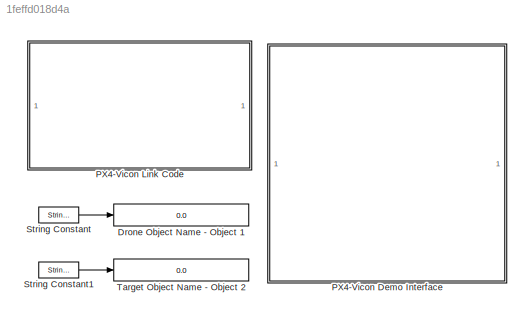
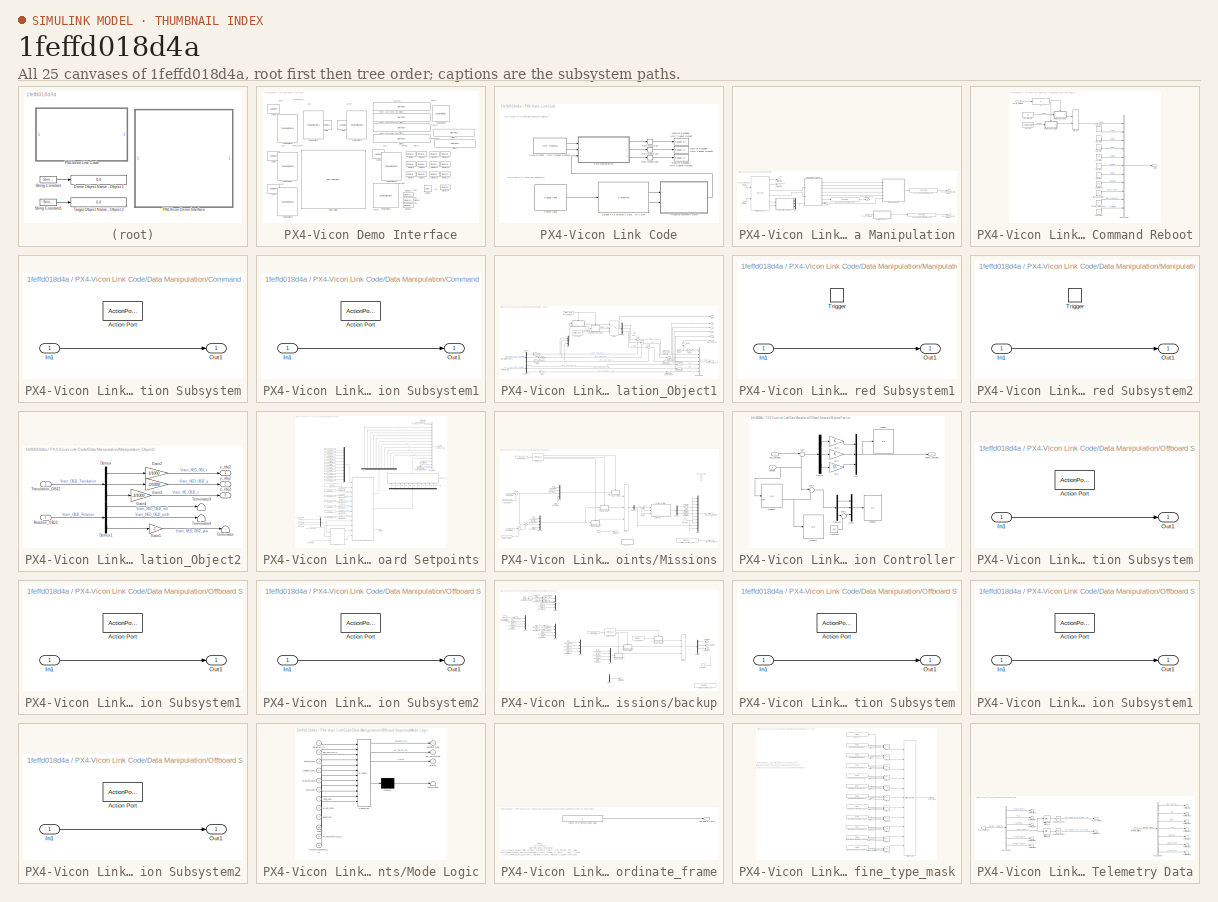
[diagram: thumbnail index - all 25 canvases of the model, root first then tree order]
MODEL slx_1feffd018d4a
KIND model
CONFIG AbsTol = auto
CONFIG EnableMultiTasking = off
CONFIG FixedStep = 1/500
CONFIG InitFcn = x_setpoint_NED = 0;\ny_setpoint_NED = 0;\nz_setpoint_NED = 0;\nvx_setpoint_NED = 0;\nvy_setpoint_NED = 0;\nvz_setpoint_NED = 0;\nafx_setpoint_NED = 0;\nafy_setpoint_NED = 0;\nafz_setpoint_NED = 0;\nyaw_setpoint_NED = 0;\nyawrate_setpoint_NED = 0;\nselected_mission = 0;\nreboot_cmd = 0;\nreturn_com = 0;\ntakeoff_com = 0;\nmission_com = 0;\nhold_com = 0;\nland_com = 0;\ndirect_com = 0;\norigin_com = 0;
CONFIG MaxStep = auto
CONFIG MinStep = auto
CONFIG PreLoadFcn = x_setpoint_NED = 0;\ny_setpoint_NED = 0;\nz_setpoint_NED = 0;\nvx_setpoint_NED = 0;\nvy_setpoint_NED = 0;\nvz_setpoint_NED = 0;\nafx_setpoint_NED = 0;\nafy_setpoint_NED = 0;\nafz_setpoint_NED = 0;\nyaw_setpoint_NED = 0;\nyawrate_setpoint_NED = 0;\nselected_mission = 0;\nreboot_cmd = 0;\nreturn_com = 0;\ntakeoff_com = 0;\nmission_com = 0;\nhold_com = 0;\nland_com = 0;\ndirect_com = 0;\norigin_com = 0;\n
CONFIG RelTol = 1e-3
CONFIG SampleTimeConstraint = Unconstrained
CONFIG Solver = FixedStepDiscrete
CONFIG SolverName = FixedStepDiscrete
CONFIG StartTime = 0.0
CONFIG StopTime = inf
BLOCK [Display] Drone Object Name - Object 1
  Decimation = 1
  Ports = [1]
BLOCK [SubSystem] PX4-Vicon Demo Interface
  Ports = []
  RequestExecContextInheritance = off
BLOCK [DisplayBlock] PX4-Vicon Demo Interface/Display
  Format = short
  LabelPosition = Hide
BLOCK [DisplayBlock] PX4-Vicon Demo Interface/Display1
  Format = short
  LabelPosition = Hide
BLOCK [DisplayBlock] PX4-Vicon Demo Interface/Display10
  Format = short
  LabelPosition = Hide
BLOCK [DisplayBlock] PX4-Vicon Demo Interface/Display11
  Format = short
  LabelPosition = Hide
BLOCK [DisplayBlock] PX4-Vicon Demo Interface/Display12
  Format = short
  LabelPosition = Hide
BLOCK [DisplayBlock] PX4-Vicon Demo Interface/Display13
  Format = short
  LabelPosition = Hide
BLOCK [DisplayBlock] PX4-Vicon Demo Interface/Display14
  Format = short
  LabelPosition = Hide
BLOCK [DisplayBlock] PX4-Vicon Demo Interface/Display18
  Format = short
  LabelPosition = Hide
BLOCK [DisplayBlock] PX4-Vicon Demo Interface/Display2
  Format = short
  LabelPosition = Hide
BLOCK [DisplayBlock] PX4-Vicon Demo Interface/Display3
  Format = short
  LabelPosition = Hide
BLOCK [DisplayBlock] PX4-Vicon Demo Interface/Display4
  Format = short
  LabelPosition = Hide
BLOCK [DisplayBlock] PX4-Vicon Demo Interface/Display5
  Format = short
  LabelPosition = Hide
BLOCK [DisplayBlock] PX4-Vicon Demo Interface/Display6
  Format = short
  LabelPosition = Hide
BLOCK [DisplayBlock] PX4-Vicon Demo Interface/Display7
  Format = short
  LabelPosition = Hide
BLOCK [DisplayBlock] PX4-Vicon Demo Interface/Display8
  Format = short
  LabelPosition = Hide
BLOCK [DisplayBlock] PX4-Vicon Demo Interface/Display9
  Format = short
  LabelPosition = Hide
BLOCK [LampBlock] PX4-Vicon Demo Interface/Lamp
  LabelPosition = Hide
BLOCK [LampBlock] PX4-Vicon Demo Interface/Lamp1
  LabelPosition = Hide
BLOCK [LampBlock] PX4-Vicon Demo Interface/Lamp2
  LabelPosition = Hide
BLOCK [LampBlock] PX4-Vicon Demo Interface/Lamp3
  LabelPosition = Hide
BLOCK [LampBlock] PX4-Vicon Demo Interface/Lamp4
  LabelPosition = Hide
BLOCK [LampBlock] PX4-Vicon Demo Interface/Lamp5
  LabelPosition = Hide
BLOCK [LampBlock] PX4-Vicon Demo Interface/Lamp6
  LabelPosition = Hide
BLOCK [RotarySwitchBlock] PX4-Vicon Demo Interface/Rotary Switch
  LabelPosition = Hide
BLOCK [SliderBlock] PX4-Vicon Demo Interface/Slider
  LabelPosition = Hide
  ScaleMax = 0.5
  ScaleMin = -0.5
  TickInterval = 0.10000000000000001
BLOCK [SliderBlock] PX4-Vicon Demo Interface/Slider1
  LabelPosition = Hide
  ScaleMax = 0.5
  ScaleMin = -0.5
  TickInterval = 0.10000000000000001
BLOCK [SliderBlock] PX4-Vicon Demo Interface/Slider2
  LabelPosition = Hide
  ScaleMax = 0
  ScaleMin = -1.5
  TickInterval = 0.10000000000000001
BLOCK [SliderBlock] PX4-Vicon Demo Interface/Slider3
  LabelPosition = Hide
  ScaleMax = 3
  ScaleMin = -3
BLOCK [SliderBlock] PX4-Vicon Demo Interface/Slider4
  LabelPosition = Hide
  ScaleMax = 0.14999999999999999
  ScaleMin = -0.14999999999999999
BLOCK [SliderBlock] PX4-Vicon Demo Interface/Slider5
  LabelPosition = Hide
  ScaleMax = 0.14999999999999999
  ScaleMin = -0.14999999999999999
BLOCK [ToggleSwitchBlock] PX4-Vicon Demo Interface/Toggle Switch1
  LabelPosition = Hide
BLOCK [ToggleSwitchBlock] PX4-Vicon Demo Interface/Toggle Switch10
  LabelPosition = Hide
BLOCK [ToggleSwitchBlock] PX4-Vicon Demo Interface/Toggle Switch2
  LabelPosition = Hide
BLOCK [ToggleSwitchBlock] PX4-Vicon Demo Interface/Toggle Switch3
  LabelPosition = Hide
BLOCK [ToggleSwitchBlock] PX4-Vicon Demo Interface/Toggle Switch5
  LabelPosition = Hide
BLOCK [ToggleSwitchBlock] PX4-Vicon Demo Interface/Toggle Switch6
  LabelPosition = Hide
BLOCK [ToggleSwitchBlock] PX4-Vicon Demo Interface/Toggle Switch7
  LabelPosition = Hide
BLOCK [ToggleSwitchBlock] PX4-Vicon Demo Interface/Toggle Switch9
  LabelPosition = Hide
BLOCK [SubSystem] PX4-Vicon Link Code
  Ports = []
  RequestExecContextInheritance = off
BLOCK [SubSystem] PX4-Vicon Link Code/Data Manipulation
  Ports = [3, 3]
  RequestExecContextInheritance = off
BLOCK [SubSystem] PX4-Vicon Link Code/Data Manipulation/Command Reboot
  Ports = [1, 1]
  RequestExecContextInheritance = off
BLOCK [BusCreator] PX4-Vicon Link Code/Data Manipulation/Command Reboot/Bus Creator
  DisplayOption = bar
  InheritFromInputs = on
  Inputs = param1,param2,param3,param4,param5,param6,param7,command,target_system,target_component,confirmation
  OutDataTypeStr = Bus: mavlink_command_long_t
  Ports = [11, 1]
BLOCK [Inport] PX4-Vicon Link Code/Data Manipulation/Command Reboot/FLAG_ARMED
  IconDisplay = Port number
BLOCK [If] PX4-Vicon Link Code/Data Manipulation/Command Reboot/If
  IfExpression = u1 == 1
  Ports = [1, 2]
BLOCK [SubSystem] PX4-Vicon Link Code/Data Manipulation/Command Reboot/If Action Subsystem
  Ports = [1, 1, 0, 0, 0, 0, 0, 1]
  RequestExecContextInheritance = off
  TreatAsAtomicUnit = on
BLOCK [ActionPort] PX4-Vicon Link Code/Data Manipulation/Command Reboot/If Action Subsystem/Action Port
  ActionPortLabel = if(u1 == 1)
BLOCK [Inport] PX4-Vicon Link Code/Data Manipulation/Command Reboot/If Action Subsystem/In1
  IconDisplay = Port number
BLOCK [Outport] PX4-Vicon Link Code/Data Manipulation/Command Reboot/If Action Subsystem/Out1
  IconDisplay = Port number
BLOCK [SubSystem] PX4-Vicon Link Code/Data Manipulation/Command Reboot/If Action Subsystem1
  Ports = [1, 1, 0, 0, 0, 0, 0, 1]
  RequestExecContextInheritance = off
  TreatAsAtomicUnit = on
BLOCK [ActionPort] PX4-Vicon Link Code/Data Manipulation/Command Reboot/If Action Subsystem1/Action Port
  ActionPortLabel = else
BLOCK [Inport] PX4-Vicon Link Code/Data Manipulation/Command Reboot/If Action Subsystem1/In1
  IconDisplay = Port number
BLOCK [Outport] PX4-Vicon Link Code/Data Manipulation/Command Reboot/If Action Subsystem1/Out1
  IconDisplay = Port number
BLOCK [Merge] PX4-Vicon Link Code/Data Manipulation/Command Reboot/Merge
  Ports = [2, 1]
BLOCK [Outport] PX4-Vicon Link Code/Data Manipulation/Command Reboot/Out1
  IconDisplay = Port number
BLOCK [Constant] PX4-Vicon Link Code/Data Manipulation/Command Reboot/command
  OutDataTypeStr = uint16
  Value = 246
BLOCK [Constant] PX4-Vicon Link Code/Data Manipulation/Command Reboot/confirmation
  OutDataTypeStr = uint8
  Value = 0
BLOCK [Constant] PX4-Vicon Link Code/Data Manipulation/Command Reboot/param1
  OutDataTypeStr = single
  Value = reboot_cmd
BLOCK [Constant] PX4-Vicon Link Code/Data Manipulation/Command Reboot/param1_off
  OutDataTypeStr = single
  Value = 0
BLOCK [Constant] PX4-Vicon Link Code/Data Manipulation/Command Reboot/param2
  OutDataTypeStr = single
  Value = 0
BLOCK [Constant] PX4-Vicon Link Code/Data Manipulation/Command Reboot/param3
  OutDataTypeStr = single
  Value = 0
BLOCK [Constant] PX4-Vicon Link Code/Data Manipulation/Command Reboot/param4
  OutDataTypeStr = single
  Value = 0
BLOCK [Constant] PX4-Vicon Link Code/Data Manipulation/Command Reboot/param5
  OutDataTypeStr = single
  Value = 0
BLOCK [Constant] PX4-Vicon Link Code/Data Manipulation/Command Reboot/param6
  OutDataTypeStr = single
  Value = 0
BLOCK [Constant] PX4-Vicon Link Code/Data Manipulation/Command Reboot/param7
  OutDataTypeStr = single
  Value = 0
BLOCK [Constant] PX4-Vicon Link Code/Data Manipulation/Command Reboot/target_component
  OutDataTypeStr = uint8
BLOCK [Constant] PX4-Vicon Link Code/Data Manipulation/Command Reboot/target_system
  OutDataTypeStr = uint8
BLOCK [S-Function] PX4-Vicon Link Code/Data Manipulation/Encode Mocap Data - MAVLink 
  EnableBusSupport = off
  FunctionName = sfun_encode_msg_vision_position_estimate
  Ports = [1, 1]
  Priority = 10
  SFcnIsStateOwnerBlock = off
  SFunctionDeploymentMode = off
BLOCK [S-Function] PX4-Vicon Link Code/Data Manipulation/Encode Reboot Data - MAVLink
  EnableBusSupport = off
  FunctionName = sfun_encode_msg_command_long
  Ports = [1, 1]
  SFcnIsStateOwnerBlock = off
  SFunctionDeploymentMode = off
BLOCK [S-Function] PX4-Vicon Link Code/Data Manipulation/Encode Setpoint Data - MAVLink
  EnableBusSupport = off
  FunctionName = sfun_encode_msg_set_position_target_local_ned
  Ports = [1, 1]
  SFcnIsStateOwnerBlock = off
  SFunctionDeploymentMode = off
BLOCK [Outport] PX4-Vicon Link Code/Data Manipulation/Encoded_Mocap_Output
  IconDisplay = Port number
  Port = 2
BLOCK [Outport] PX4-Vicon Link Code/Data Manipulation/Encoded_Reboot_Output
  IconDisplay = Port number
  Port = 3
BLOCK [Outport] PX4-Vicon Link Code/Data Manipulation/Encoded_Setpoints_Output
  IconDisplay = Port number
BLOCK [Inport] PX4-Vicon Link Code/Data Manipulation/FLAG_ARMED
  IconDisplay = Port number
  Port = 3
BLOCK [SubSystem] PX4-Vicon Link Code/Data Manipulation/Manipulation_Object1
  Ports = [2, 7]
  Priority = 10
  RequestExecContextInheritance = off
BLOCK [BusCreator] PX4-Vicon Link Code/Data Manipulation/Manipulation_Object1/Bus Creator1
  DisplayOption = bar
  InheritFromInputs = on
  Inputs = time_usec,x,y,z,roll,pitch,yaw
  OutDataTypeStr = Bus: mavlink_vision_position_estimate_t
  Ports = [7, 1]
BLOCK [Clock] PX4-Vicon Link Code/Data Manipulation/Manipulation_Object1/Clock
  DisplayTime = on
BLOCK [Constant] PX4-Vicon Link Code/Data Manipulation/Manipulation_Object1/Constant2
  Value = origin_pos
BLOCK [Constant] PX4-Vicon Link Code/Data Manipulation/Manipulation_Object1/Constant3
  Value = origin_com
BLOCK [Constant] PX4-Vicon Link Code/Data Manipulation/Manipulation_Object1/Constant4
BLOCK [DataTypeConversion] PX4-Vicon Link Code/Data Manipulation/Manipulation_Object1/Data Type Conversion
  OutDataTypeStr = single
  RndMeth = Floor
  SaturateOnIntegerOverflow = off
BLOCK [DataTypeConversion] PX4-Vicon Link Code/Data Manipulation/Manipulation_Object1/Data Type Conversion1
  OutDataTypeStr = single
  RndMeth = Floor
  SaturateOnIntegerOverflow = off
BLOCK [DataTypeConversion] PX4-Vicon Link Code/Data Manipulation/Manipulation_Object1/Data Type Conversion2
  OutDataTypeStr = single
  RndMeth = Floor
  SaturateOnIntegerOverflow = off
BLOCK [DataTypeConversion] PX4-Vicon Link Code/Data Manipulation/Manipulation_Object1/Data Type Conversion3
  OutDataTypeStr = single
  RndMeth = Floor
  SaturateOnIntegerOverflow = off
BLOCK [DataTypeConversion] PX4-Vicon Link Code/Data Manipulation/Manipulation_Object1/Data Type Conversion4
  OutDataTypeStr = single
  RndMeth = Floor
  SaturateOnIntegerOverflow = off
BLOCK [DataTypeConversion] PX4-Vicon Link Code/Data Manipulation/Manipulation_Object1/Data Type Conversion5
  OutDataTypeStr = single
  RndMeth = Floor
  SaturateOnIntegerOverflow = off
BLOCK [Demux] PX4-Vicon Link Code/Data Manipulation/Manipulation_Object1/Demux
  DisplayOption = bar
  Outputs = 3
  Ports = [1, 3]
BLOCK [Demux] PX4-Vicon Link Code/Data Manipulation/Manipulation_Object1/Demux1
  DisplayOption = bar
  Outputs = 3
  Ports = [1, 3]
BLOCK [Demux] PX4-Vicon Link Code/Data Manipulation/Manipulation_Object1/Demux2
  DisplayOption = bar
  Outputs = 3
  Ports = [1, 3]
BLOCK [Gain] PX4-Vicon Link Code/Data Manipulation/Manipulation_Object1/Gain1
  Gain = -1
  ParamDataTypeStr = Inherit: Inherit via internal rule
  SaturateOnIntegerOverflow = off
BLOCK [Gain] PX4-Vicon Link Code/Data Manipulation/Manipulation_Object1/Gain2
  Gain = 1/1000
  OutDataTypeStr = double
  ParamDataTypeStr = Inherit: Inherit via internal rule
  SaturateOnIntegerOverflow = off
BLOCK [Gain] PX4-Vicon Link Code/Data Manipulation/Manipulation_Object1/Gain3
  Gain = -1/1000
  OutDataTypeStr = double
  ParamDataTypeStr = Inherit: Inherit via internal rule
  SaturateOnIntegerOverflow = off
BLOCK [Gain] PX4-Vicon Link Code/Data Manipulation/Manipulation_Object1/Gain4
  Gain = -1/1000
  OutDataTypeStr = double
  ParamDataTypeStr = Inherit: Inherit via internal rule
  SaturateOnIntegerOverflow = off
BLOCK [Gain] PX4-Vicon Link Code/Data Manipulation/Manipulation_Object1/Gain5
  Gain = 1e6
  OutDataTypeStr = double
  ParamDataTypeStr = Inherit: Inherit via internal rule
  SaturateOnIntegerOverflow = off
BLOCK [Gain] PX4-Vicon Link Code/Data Manipulation/Manipulation_Object1/Gain6
  Gain = 1e3
  OutDataTypeStr = double
  ParamDataTypeStr = Inherit: Inherit via internal rule
  SaturateOnIntegerOverflow = off
BLOCK [Mux] PX4-Vicon Link Code/Data Manipulation/Manipulation_Object1/Mux
  DisplayOption = bar
  Inputs = 3
  Ports = [3, 1]
BLOCK [Inport] PX4-Vicon Link Code/Data Manipulation/Manipulation_Object1/Rotation_OBJ1
  IconDisplay = Port number
  Port = 2
BLOCK [Sum] PX4-Vicon Link Code/Data Manipulation/Manipulation_Object1/Sum
  IconShape = round
  InputSameDT = off
  Inputs = |-+
  OutDataTypeStr = Inherit: Inherit via internal rule
  Ports = [2, 1]
  SaturateOnIntegerOverflow = off
BLOCK [Sum] PX4-Vicon Link Code/Data Manipulation/Manipulation_Object1/Sum1
  IconShape = round
  InputSameDT = off
  Inputs = |-+
  OutDataTypeStr = Inherit: Inherit via internal rule
  Ports = [2, 1]
  SaturateOnIntegerOverflow = off
BLOCK [Sum] PX4-Vicon Link Code/Data Manipulation/Manipulation_Object1/Sum2
  IconShape = round
  InputSameDT = off
  Inputs = |-+
  OutDataTypeStr = Inherit: Inherit via internal rule
  Ports = [2, 1]
  SaturateOnIntegerOverflow = off
BLOCK [Switch] PX4-Vicon Link Code/Data Manipulation/Manipulation_Object1/Switch
  Criteria = u2 > Threshold
  InputSameDT = off
  SaturateOnIntegerOverflow = off
BLOCK [Inport] PX4-Vicon Link Code/Data Manipulation/Manipulation_Object1/Translation_OBJ1
  IconDisplay = Port number
BLOCK [SubSystem] PX4-Vicon Link Code/Data Manipulation/Manipulation_Object1/Triggered Subsystem1
  Ports = [1, 1, 0, 1]
  RequestExecContextInheritance = off
  TreatAsAtomicUnit = on
BLOCK [Inport] PX4-Vicon Link Code/Data Manipulation/Manipulation_Object1/Triggered Subsystem1/In1
  IconDisplay = Port number
BLOCK [Outport] PX4-Vicon Link Code/Data Manipulation/Manipulation_Object1/Triggered Subsystem1/Out1
  IconDisplay = Port number
  VectorParamsAs1DForOutWhenUnconnected = on
BLOCK [TriggerPort] PX4-Vicon Link Code/Data Manipulation/Manipulation_Object1/Triggered Subsystem1/Trigger
  InitialTriggerSignalState = zero
  Ports = []
  StatesWhenEnabling = held
  VariantControl = Variant
BLOCK [SubSystem] PX4-Vicon Link Code/Data Manipulation/Manipulation_Object1/Triggered Subsystem2
  Ports = [1, 1, 0, 1]
  RequestExecContextInheritance = off
  TreatAsAtomicUnit = on
BLOCK [Inport] PX4-Vicon Link Code/Data Manipulation/Manipulation_Object1/Triggered Subsystem2/In1
  IconDisplay = Port number
BLOCK [Outport] PX4-Vicon Link Code/Data Manipulation/Manipulation_Object1/Triggered Subsystem2/Out1
  IconDisplay = Port number
  VectorParamsAs1DForOutWhenUnconnected = on
BLOCK [TriggerPort] PX4-Vicon Link Code/Data Manipulation/Manipulation_Object1/Triggered Subsystem2/Trigger
  InitialTriggerSignalState = zero
  Ports = []
  StatesWhenEnabling = held
  VariantControl = Variant
BLOCK [Outport] PX4-Vicon Link Code/Data Manipulation/Manipulation_Object1/origin
  IconDisplay = Port number
  Port = 7
BLOCK [Outport] PX4-Vicon Link Code/Data Manipulation/Manipulation_Object1/time_boot_ms
  IconDisplay = Port number
  Port = 5
BLOCK [Outport] PX4-Vicon Link Code/Data Manipulation/Manipulation_Object1/vicon_data_bus
  IconDisplay = Port number
  Port = 6
BLOCK [Outport] PX4-Vicon Link Code/Data Manipulation/Manipulation_Object1/x
  IconDisplay = Port number
BLOCK [Outport] PX4-Vicon Link Code/Data Manipulation/Manipulation_Object1/y
  IconDisplay = Port number
  Port = 2
BLOCK [Outport] PX4-Vicon Link Code/Data Manipulation/Manipulation_Object1/yaw
  IconDisplay = Port number
  Port = 4
BLOCK [Outport] PX4-Vicon Link Code/Data Manipulation/Manipulation_Object1/z
  IconDisplay = Port number
  Port = 3
BLOCK [SubSystem] PX4-Vicon Link Code/Data Manipulation/Manipulation_Object2
  Ports = [2, 3]
  RequestExecContextInheritance = off
BLOCK [Demux] PX4-Vicon Link Code/Data Manipulation/Manipulation_Object2/Demux
  DisplayOption = bar
  Outputs = 3
  Ports = [1, 3]
BLOCK [Demux] PX4-Vicon Link Code/Data Manipulation/Manipulation_Object2/Demux1
  DisplayOption = bar
  Outputs = 3
  Ports = [1, 3]
BLOCK [Gain] PX4-Vicon Link Code/Data Manipulation/Manipulation_Object2/Gain1
  Gain = -1
  ParamDataTypeStr = Inherit: Inherit via internal rule
  SaturateOnIntegerOverflow = off
BLOCK [Gain] PX4-Vicon Link Code/Data Manipulation/Manipulation_Object2/Gain2
  Gain = 1/1000
  OutDataTypeStr = double
  ParamDataTypeStr = Inherit: Inherit via internal rule
  SaturateOnIntegerOverflow = off
BLOCK [Gain] PX4-Vicon Link Code/Data Manipulation/Manipulation_Object2/Gain3
  Gain = -1/1000
  OutDataTypeStr = double
  ParamDataTypeStr = Inherit: Inherit via internal rule
  SaturateOnIntegerOverflow = off
BLOCK [Gain] PX4-Vicon Link Code/Data Manipulation/Manipulation_Object2/Gain4
  Gain = -1/1000
  OutDataTypeStr = double
  ParamDataTypeStr = Inherit: Inherit via internal rule
  SaturateOnIntegerOverflow = off
BLOCK [Inport] PX4-Vicon Link Code/Data Manipulation/Manipulation_Object2/Rotation_OBJ2
  IconDisplay = Port number
  Port = 2
BLOCK [Terminator] PX4-Vicon Link Code/Data Manipulation/Manipulation_Object2/Terminator
BLOCK [Terminator] PX4-Vicon Link Code/Data Manipulation/Manipulation_Object2/Terminator3
BLOCK [Terminator] PX4-Vicon Link Code/Data Manipulation/Manipulation_Object2/Terminator4
BLOCK [Inport] PX4-Vicon Link Code/Data Manipulation/Manipulation_Object2/Translation_OBJ2
  IconDisplay = Port number
BLOCK [Outport] PX4-Vicon Link Code/Data Manipulation/Manipulation_Object2/x_obj2
  IconDisplay = Port number
  VectorParamsAs1DForOutWhenUnconnected = on
BLOCK [Outport] PX4-Vicon Link Code/Data Manipulation/Manipulation_Object2/y_obj2
  IconDisplay = Port number
  Port = 2
  VectorParamsAs1DForOutWhenUnconnected = on
BLOCK [Outport] PX4-Vicon Link Code/Data Manipulation/Manipulation_Object2/z_obj2
  IconDisplay = Port number
  Port = 3
  VectorParamsAs1DForOutWhenUnconnected = on
BLOCK [S-Function] PX4-Vicon Link Code/Data Manipulation/MultiObjectParser
  AttributesFormatString = Data_Parser_Multi
  EnableBusSupport = off
  FunctionName = TrackerMultiObjectParser
  Parameters = Object1,Object2
  Ports = [2, 6]
  Priority = 10
  SFcnIsStateOwnerBlock = off
  SFunctionDeploymentMode = off
  SFunctionModules = TrackerMultiObjectParser
  Tag = Data_Parser_Multi
BLOCK [Mux] PX4-Vicon Link Code/Data Manipulation/Mux
  DisplayOption = bar
  Inputs = 3
  Ports = [3, 1]
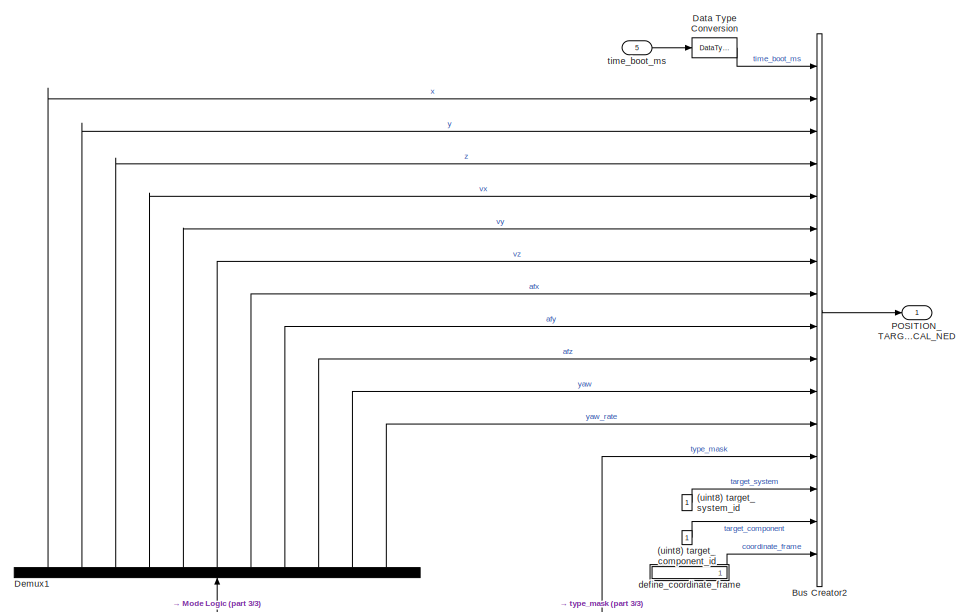
[diagram: PX4-Vicon Link Code/Data Manipulation/Offboard Setpoints - part 1/3, top right region]
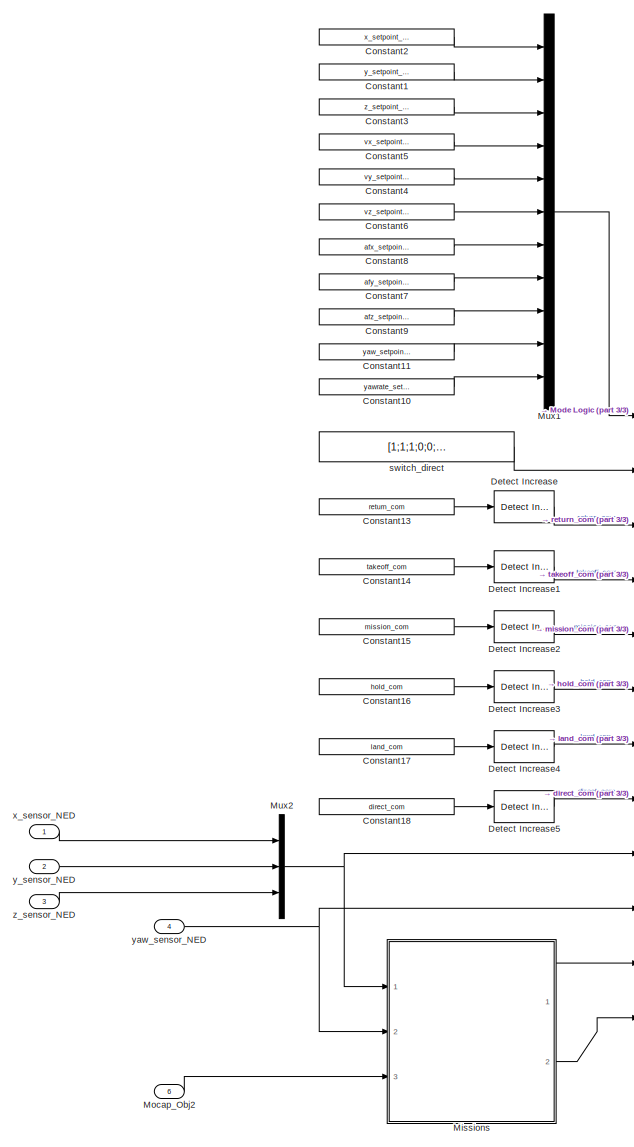
[diagram: PX4-Vicon Link Code/Data Manipulation/Offboard Setpoints - part 2/3, left side, full height]
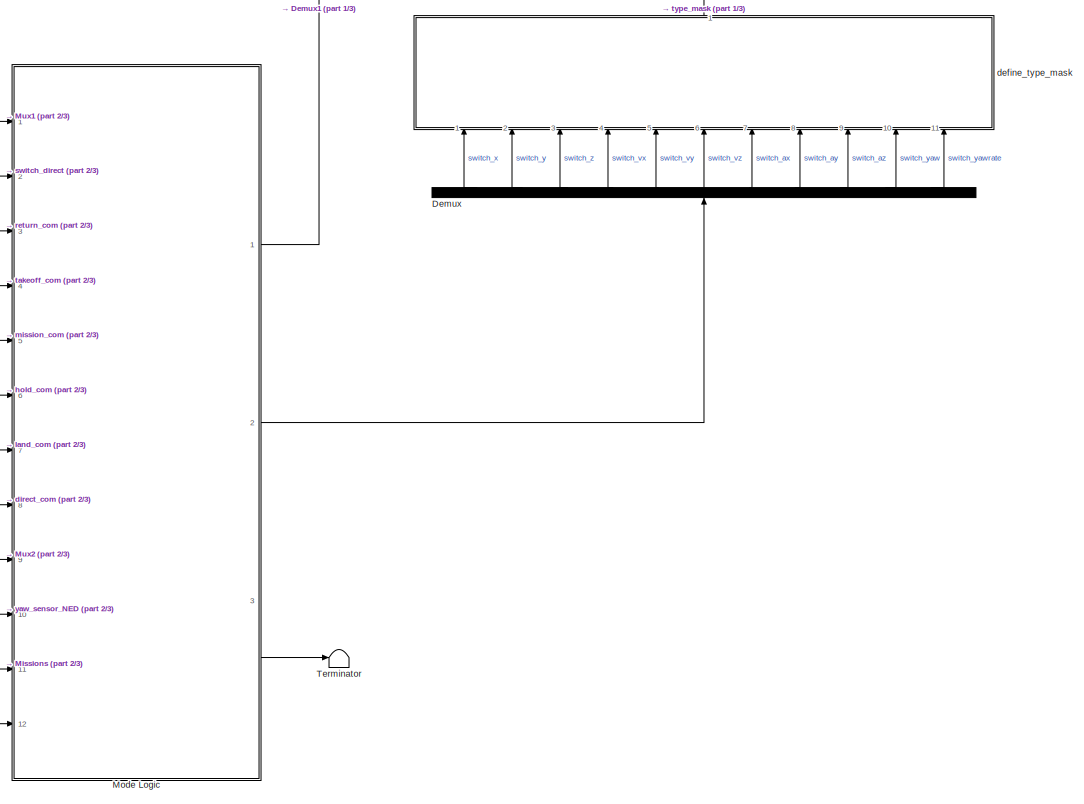
[diagram: PX4-Vicon Link Code/Data Manipulation/Offboard Setpoints - part 3/3, bottom right region]
BLOCK [SubSystem] PX4-Vicon Link Code/Data Manipulation/Offboard Setpoints
  Ports = [6, 1]
  RequestExecContextInheritance = off
BLOCK [Constant] PX4-Vicon Link Code/Data Manipulation/Offboard Setpoints/(uint8) target_component_id
  OutDataTypeStr = uint8
BLOCK [Constant] PX4-Vicon Link Code/Data Manipulation/Offboard Setpoints/(uint8) target_system_id
  OutDataTypeStr = uint8
BLOCK [BusCreator] PX4-Vicon Link Code/Data Manipulation/Offboard Setpoints/Bus Creator2
  DisplayOption = bar
  InheritFromInputs = on
  Inputs = time_boot_ms,x,y,z,vx,vy,vz,afx,afy,afz,yaw,yaw_rate,type_mask,target_system,target_component,coordinate_frame
  OutDataTypeStr = Bus: mavlink_set_position_target_local_ned_t
  Ports = [16, 1]
BLOCK [Constant] PX4-Vicon Link Code/Data Manipulation/Offboard Setpoints/Constant1
  OutDataTypeStr = single
  Value = y_setpoint_NED
BLOCK [Constant] PX4-Vicon Link Code/Data Manipulation/Offboard Setpoints/Constant10
  OutDataTypeStr = single
  Value = yawrate_setpoint_NED
BLOCK [Constant] PX4-Vicon Link Code/Data Manipulation/Offboard Setpoints/Constant11
  OutDataTypeStr = single
  Value = yaw_setpoint_NED
BLOCK [Constant] PX4-Vicon Link Code/Data Manipulation/Offboard Setpoints/Constant13
  OutDataTypeStr = single
  Value = return_com
BLOCK [Constant] PX4-Vicon Link Code/Data Manipulation/Offboard Setpoints/Constant14
  OutDataTypeStr = single
  Value = takeoff_com
BLOCK [Constant] PX4-Vicon Link Code/Data Manipulation/Offboard Setpoints/Constant15
  OutDataTypeStr = single
  Value = mission_com
BLOCK [Constant] PX4-Vicon Link Code/Data Manipulation/Offboard Setpoints/Constant16
  OutDataTypeStr = single
  Value = hold_com
BLOCK [Constant] PX4-Vicon Link Code/Data Manipulation/Offboard Setpoints/Constant17
  OutDataTypeStr = single
  Value = land_com
BLOCK [Constant] PX4-Vicon Link Code/Data Manipulation/Offboard Setpoints/Constant18
  OutDataTypeStr = single
  Value = direct_com
BLOCK [Constant] PX4-Vicon Link Code/Data Manipulation/Offboard Setpoints/Constant2
  OutDataTypeStr = single
  Value = x_setpoint_NED
BLOCK [Constant] PX4-Vicon Link Code/Data Manipulation/Offboard Setpoints/Constant3
  OutDataTypeStr = single
  Value = z_setpoint_NED
BLOCK [Constant] PX4-Vicon Link Code/Data Manipulation/Offboard Setpoints/Constant4
  OutDataTypeStr = single
  Value = vy_setpoint_NED
BLOCK [Constant] PX4-Vicon Link Code/Data Manipulation/Offboard Setpoints/Constant5
  OutDataTypeStr = single
  Value = vx_setpoint_NED
BLOCK [Constant] PX4-Vicon Link Code/Data Manipulation/Offboard Setpoints/Constant6
  OutDataTypeStr = single
  Value = vz_setpoint_NED
BLOCK [Constant] PX4-Vicon Link Code/Data Manipulation/Offboard Setpoints/Constant7
  OutDataTypeStr = single
  Value = afy_setpoint_NED
BLOCK [Constant] PX4-Vicon Link Code/Data Manipulation/Offboard Setpoints/Constant8
  OutDataTypeStr = single
  Value = afx_setpoint_NED
BLOCK [Constant] PX4-Vicon Link Code/Data Manipulation/Offboard Setpoints/Constant9
  OutDataTypeStr = single
  Value = afz_setpoint_NED
BLOCK [DataTypeConversion] PX4-Vicon Link Code/Data Manipulation/Offboard Setpoints/Data Type Conversion
  OutDataTypeStr = uint32
  RndMeth = Floor
  SaturateOnIntegerOverflow = off
BLOCK [Demux] PX4-Vicon Link Code/Data Manipulation/Offboard Setpoints/Demux
  DisplayOption = bar
  Outputs = 11
  Ports = [1, 11]
BLOCK [Demux] PX4-Vicon Link Code/Data Manipulation/Offboard Setpoints/Demux1
  DisplayOption = bar
  Outputs = 11
  Ports = [1, 11]
BLOCK [Reference] PX4-Vicon Link Code/Data Manipulation/Offboard Setpoints/Detect Increase  REF=simulink/Logic and Bit
Operations/Detect
Increase
  Ports = [1, 1]
  SourceBlock = simulink/Logic and Bit\nOperations/Detect\nIncrease
  SourceProductBaseCode = SL
  SourceProductName = Simulink
  SourceType = Detect Increase
BLOCK [Reference] PX4-Vicon Link Code/Data Manipulation/Offboard Setpoints/Detect Increase1  REF=simulink/Logic and Bit
Operations/Detect
Increase
  Ports = [1, 1]
  SourceBlock = simulink/Logic and Bit\nOperations/Detect\nIncrease
  SourceProductBaseCode = SL
  SourceProductName = Simulink
  SourceType = Detect Increase
BLOCK [Reference] PX4-Vicon Link Code/Data Manipulation/Offboard Setpoints/Detect Increase2  REF=simulink/Logic and Bit
Operations/Detect
Increase
  Ports = [1, 1]
  SourceBlock = simulink/Logic and Bit\nOperations/Detect\nIncrease
  SourceProductBaseCode = SL
  SourceProductName = Simulink
  SourceType = Detect Increase
BLOCK [Reference] PX4-Vicon Link Code/Data Manipulation/Offboard Setpoints/Detect Increase3  REF=simulink/Logic and Bit
Operations/Detect
Increase
  Ports = [1, 1]
  SourceBlock = simulink/Logic and Bit\nOperations/Detect\nIncrease
  SourceProductBaseCode = SL
  SourceProductName = Simulink
  SourceType = Detect Increase
BLOCK [Reference] PX4-Vicon Link Code/Data Manipulation/Offboard Setpoints/Detect Increase4  REF=simulink/Logic and Bit
Operations/Detect
Increase
  Ports = [1, 1]
  SourceBlock = simulink/Logic and Bit\nOperations/Detect\nIncrease
  SourceProductBaseCode = SL
  SourceProductName = Simulink
  SourceType = Detect Increase
BLOCK [Reference] PX4-Vicon Link Code/Data Manipulation/Offboard Setpoints/Detect Increase5  REF=simulink/Logic and Bit
Operations/Detect
Increase
  Ports = [1, 1]
  SourceBlock = simulink/Logic and Bit\nOperations/Detect\nIncrease
  SourceProductBaseCode = SL
  SourceProductName = Simulink
  SourceType = Detect Increase
BLOCK [SubSystem] PX4-Vicon Link Code/Data Manipulation/Offboard Setpoints/Missions
  Ports = [3, 2]
  RequestExecContextInheritance = off
BLOCK [Constant] PX4-Vicon Link Code/Data Manipulation/Offboard Setpoints/Missions/Constant
  OutDataTypeStr = single
  Value = 0
BLOCK [Constant] PX4-Vicon Link Code/Data Manipulation/Offboard Setpoints/Missions/Constant1
  OutDataTypeStr = single
  Value = 0.25
BLOCK [Constant] PX4-Vicon Link Code/Data Manipulation/Offboard Setpoints/Missions/Constant12
  OutDataTypeStr = single
  Value = -0.4
BLOCK [Constant] PX4-Vicon Link Code/Data Manipulation/Offboard Setpoints/Missions/Constant13
  OutDataTypeStr = single
  Value = pi/2
BLOCK [Constant] PX4-Vicon Link Code/Data Manipulation/Offboard Setpoints/Missions/Constant19
  OutDataTypeStr = single
  Value = 0
BLOCK [Constant] PX4-Vicon Link Code/Data Manipulation/Offboard Setpoints/Missions/Constant2
  OutDataTypeStr = single
  Value = pi/2
BLOCK [Constant] PX4-Vicon Link Code/Data Manipulation/Offboard Setpoints/Missions/Constant20
  OutDataTypeStr = single
  Value = 0.325
BLOCK [Constant] PX4-Vicon Link Code/Data Manipulation/Offboard Setpoints/Missions/Constant3
  OutDataTypeStr = single
  Value = 0
BLOCK [Constant] PX4-Vicon Link Code/Data Manipulation/Offboard Setpoints/Missions/Constant4
  OutDataTypeStr = single
  Value = -0.52
BLOCK [Constant] PX4-Vicon Link Code/Data Manipulation/Offboard Setpoints/Missions/Constant6
  Value = selected_mission
BLOCK [Demux] PX4-Vicon Link Code/Data Manipulation/Offboard Setpoints/Missions/Demux
  DisplayOption = bar
  Outputs = 3
  Ports = [1, 3]
BLOCK [Demux] PX4-Vicon Link Code/Data Manipulation/Offboard Setpoints/Missions/Demux1
  DisplayOption = bar
  Outputs = 2
  Ports = [1, 2]
BLOCK [Merge] PX4-Vicon Link Code/Data Manipulation/Offboard Setpoints/Missions/Merge
  Inputs = 3
  Ports = [3, 1]
BLOCK [Mux] PX4-Vicon Link Code/Data Manipulation/Offboard Setpoints/Missions/Mux
  DisplayOption = bar
  Inputs = 11
  Ports = [11, 1]
BLOCK [Mux] PX4-Vicon Link Code/Data Manipulation/Offboard Setpoints/Missions/Mux1
  DisplayOption = bar
  Ports = [4, 1]
BLOCK [Mux] PX4-Vicon Link Code/Data Manipulation/Offboard Setpoints/Missions/Mux3
  DisplayOption = bar
  Ports = [4, 1]
BLOCK [SubSystem] PX4-Vicon Link Code/Data Manipulation/Offboard Setpoints/Missions/Position Controller
  Ports = [3, 1]
  RequestExecContextInheritance = off
BLOCK [Constant] PX4-Vicon Link Code/Data Manipulation/Offboard Setpoints/Missions/Position Controller/Constant
  Value = 0.94
BLOCK [Demux] PX4-Vicon Link Code/Data Manipulation/Offboard Setpoints/Missions/Position Controller/Demux
  DisplayOption = bar
  Outputs = 3
  Ports = [1, 3]
BLOCK [Demux] PX4-Vicon Link Code/Data Manipulation/Offboard Setpoints/Missions/Position Controller/Demux1
  DisplayOption = bar
  Outputs = 3
  Ports = [1, 3]
BLOCK [Display] PX4-Vicon Link Code/Data Manipulation/Offboard Setpoints/Missions/Position Controller/Display
  Decimation = 1
  Ports = [1]
BLOCK [Display] PX4-Vicon Link Code/Data Manipulation/Offboard Setpoints/Missions/Position Controller/Display1
  Decimation = 1
  Ports = [1]
BLOCK [Display] PX4-Vicon Link Code/Data Manipulation/Offboard Setpoints/Missions/Position Controller/Display2
  Decimation = 1
  Ports = [1]
BLOCK [Display] PX4-Vicon Link Code/Data Manipulation/Offboard Setpoints/Missions/Position Controller/Display3
  Decimation = 1
  Ports = [1]
BLOCK [Gain] PX4-Vicon Link Code/Data Manipulation/Offboard Setpoints/Missions/Position Controller/Kp_X
  OutDataTypeStr = Inherit: Inherit via internal rule
  ParamDataTypeStr = Inherit: Inherit via internal rule
  SaturateOnIntegerOverflow = off
BLOCK [Gain] PX4-Vicon Link Code/Data Manipulation/Offboard Setpoints/Missions/Position Controller/Kp_Y
  OutDataTypeStr = Inherit: Inherit via internal rule
  ParamDataTypeStr = Inherit: Inherit via internal rule
  SaturateOnIntegerOverflow = off
BLOCK [Gain] PX4-Vicon Link Code/Data Manipulation/Offboard Setpoints/Missions/Position Controller/Kp_Z
  Gain = 0.5
  OutDataTypeStr = Inherit: Inherit via internal rule
  ParamDataTypeStr = Inherit: Inherit via internal rule
  SaturateOnIntegerOverflow = off
BLOCK [Mux] PX4-Vicon Link Code/Data Manipulation/Offboard Setpoints/Missions/Position Controller/Mux
  DisplayOption = bar
  Inputs = 3
  Ports = [3, 1]
BLOCK [Mux] PX4-Vicon Link Code/Data Manipulation/Offboard Setpoints/Missions/Position Controller/Mux1
  DisplayOption = bar
  Inputs = 3
  Ports = [3, 1]
BLOCK [Sum] PX4-Vicon Link Code/Data Manipulation/Offboard Setpoints/Missions/Position Controller/Sum
  IconShape = round
  InputSameDT = off
  Inputs = |+-
  OutDataTypeStr = Inherit: Inherit via internal rule
  Ports = [2, 1]
  SaturateOnIntegerOverflow = off
BLOCK [Sum] PX4-Vicon Link Code/Data Manipulation/Offboard Setpoints/Missions/Position Controller/Sum1
  IconShape = round
  InputSameDT = off
  Inputs = |+-
  OutDataTypeStr = Inherit: Inherit via internal rule
  Ports = [2, 1]
  SaturateOnIntegerOverflow = off
BLOCK [Sum] PX4-Vicon Link Code/Data Manipulation/Offboard Setpoints/Missions/Position Controller/Sum2
  IconShape = round
  InputSameDT = off
  Inputs = |++
  OutDataTypeStr = Inherit: Inherit via internal rule
  Ports = [2, 1]
  SaturateOnIntegerOverflow = off
BLOCK [Inport] PX4-Vicon Link Code/Data Manipulation/Offboard Setpoints/Missions/Position Controller/base 
  IconDisplay = Port number
  Port = 3
  PortDimensions = 3
BLOCK [Inport] PX4-Vicon Link Code/Data Manipulation/Offboard Setpoints/Missions/Position Controller/pos_setpoint
  IconDisplay = Port number
  PortDimensions = 3
BLOCK [Inport] PX4-Vicon Link Code/Data Manipulation/Offboard Setpoints/Missions/Position Controller/position
  IconDisplay = Port number
  Port = 2
  PortDimensions = 3
BLOCK [Outport] PX4-Vicon Link Code/Data Manipulation/Offboard Setpoints/Missions/Position Controller/velocity_setpoint
  IconDisplay = Port number
  PortDimensions = 3
BLOCK [Saturate] PX4-Vicon Link Code/Data Manipulation/Offboard Setpoints/Missions/Saturation
  InputPortMap = u0
  LowerLimit = -1
  Ports = [1, 1]
  UpperLimit = 1
BLOCK [Saturate] PX4-Vicon Link Code/Data Manipulation/Offboard Setpoints/Missions/Saturation1
  InputPortMap = u0
  LowerLimit = -1
  Ports = [1, 1]
  UpperLimit = 1
BLOCK [Saturate] PX4-Vicon Link Code/Data Manipulation/Offboard Setpoints/Missions/Saturation2
  InputPortMap = u0
  LowerLimit = -1
  Ports = [1, 1]
  UpperLimit = 1
BLOCK [Sum] PX4-Vicon Link Code/Data Manipulation/Offboard Setpoints/Missions/Sum
  IconShape = round
  InputSameDT = off
  Inputs = |++
  OutDataTypeStr = Inherit: Inherit via internal rule
  Ports = [2, 1]
  SaturateOnIntegerOverflow = off
BLOCK [Sum] PX4-Vicon Link Code/Data Manipulation/Offboard Setpoints/Missions/Sum1
  IconShape = round
  InputSameDT = off
  Inputs = |+-
  OutDataTypeStr = Inherit: Inherit via internal rule
  Ports = [2, 1]
  SaturateOnIntegerOverflow = off
BLOCK [Sum] PX4-Vicon Link Code/Data Manipulation/Offboard Setpoints/Missions/Sum2
  IconShape = round
  InputSameDT = off
  Inputs = |+-
  OutDataTypeStr = Inherit: Inherit via internal rule
  Ports = [2, 1]
  SaturateOnIntegerOverflow = off
BLOCK [SwitchCase] PX4-Vicon Link Code/Data Manipulation/Offboard Setpoints/Missions/Switch Case
  CaseConditions = {0,1,2}
  Ports = [1, 3]
  ShowDefaultCase = off
BLOCK [SubSystem] PX4-Vicon Link Code/Data Manipulation/Offboard Setpoints/Missions/Switch Case Action Subsystem
  Ports = [1, 1, 0, 0, 0, 0, 0, 1]
  RequestExecContextInheritance = off
  TreatAsAtomicUnit = on
BLOCK [ActionPort] PX4-Vicon Link Code/Data Manipulation/Offboard Setpoints/Missions/Switch Case Action Subsystem/Action Port
  ActionPortLabel = case [ 0 ]:
BLOCK [Inport] PX4-Vicon Link Code/Data Manipulation/Offboard Setpoints/Missions/Switch Case Action Subsystem/In1
  IconDisplay = Port number
BLOCK [Outport] PX4-Vicon Link Code/Data Manipulation/Offboard Setpoints/Missions/Switch Case Action Subsystem/Out1
  IconDisplay = Port number
BLOCK [SubSystem] PX4-Vicon Link Code/Data Manipulation/Offboard Setpoints/Missions/Switch Case Action Subsystem1
  Ports = [1, 1, 0, 0, 0, 0, 0, 1]
  RequestExecContextInheritance = off
  TreatAsAtomicUnit = on
BLOCK [ActionPort] PX4-Vicon Link Code/Data Manipulation/Offboard Setpoints/Missions/Switch Case Action Subsystem1/Action Port
  ActionPortLabel = case [ 1 ]:
BLOCK [Inport] PX4-Vicon Link Code/Data Manipulation/Offboard Setpoints/Missions/Switch Case Action Subsystem1/In1
  IconDisplay = Port number
BLOCK [Outport] PX4-Vicon Link Code/Data Manipulation/Offboard Setpoints/Missions/Switch Case Action Subsystem1/Out1
  IconDisplay = Port number
BLOCK [SubSystem] PX4-Vicon Link Code/Data Manipulation/Offboard Setpoints/Missions/Switch Case Action Subsystem2
  Ports = [1, 1, 0, 0, 0, 0, 0, 1]
  RequestExecContextInheritance = off
  TreatAsAtomicUnit = on
BLOCK [ActionPort] PX4-Vicon Link Code/Data Manipulation/Offboard Setpoints/Missions/Switch Case Action Subsystem2/Action Port
  ActionPortLabel = case [ 2 ]:
BLOCK [Inport] PX4-Vicon Link Code/Data Manipulation/Offboard Setpoints/Missions/Switch Case Action Subsystem2/In1
  IconDisplay = Port number
BLOCK [Outport] PX4-Vicon Link Code/Data Manipulation/Offboard Setpoints/Missions/Switch Case Action Subsystem2/Out1
  IconDisplay = Port number
BLOCK [Terminator] PX4-Vicon Link Code/Data Manipulation/Offboard Setpoints/Missions/Terminator
BLOCK [Terminator] PX4-Vicon Link Code/Data Manipulation/Offboard Setpoints/Missions/Terminator1
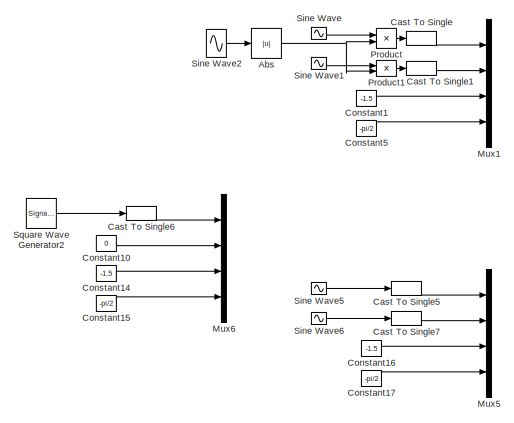
[diagram: PX4-Vicon Link Code/Data Manipulation/Offboard Setpoints/Missions/backup - part 1/2, top left region]
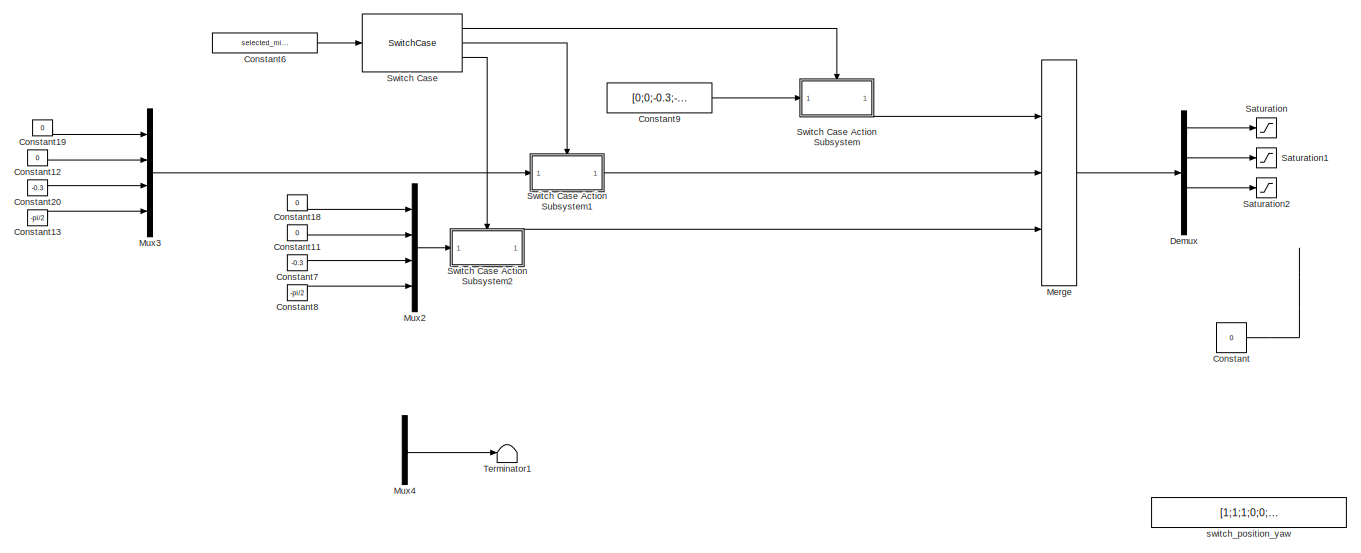
[diagram: PX4-Vicon Link Code/Data Manipulation/Offboard Setpoints/Missions/backup - part 2/2, bottom center region]
BLOCK [SubSystem] PX4-Vicon Link Code/Data Manipulation/Offboard Setpoints/Missions/backup
  Commented = on
  Ports = []
  RequestExecContextInheritance = off
BLOCK [Abs] PX4-Vicon Link Code/Data Manipulation/Offboard Setpoints/Missions/backup/Abs
  Commented = on
  SaturateOnIntegerOverflow = off
BLOCK [DataTypeConversion] PX4-Vicon Link Code/Data Manipulation/Offboard Setpoints/Missions/backup/Cast To Single
  Commented = on
  OutDataTypeStr = single
  RndMeth = Floor
  SaturateOnIntegerOverflow = off
BLOCK [DataTypeConversion] PX4-Vicon Link Code/Data Manipulation/Offboard Setpoints/Missions/backup/Cast To Single1
  Commented = on
  OutDataTypeStr = single
  RndMeth = Floor
  SaturateOnIntegerOverflow = off
BLOCK [DataTypeConversion] PX4-Vicon Link Code/Data Manipulation/Offboard Setpoints/Missions/backup/Cast To Single5
  Commented = on
  OutDataTypeStr = single
  RndMeth = Floor
  SaturateOnIntegerOverflow = off
BLOCK [DataTypeConversion] PX4-Vicon Link Code/Data Manipulation/Offboard Setpoints/Missions/backup/Cast To Single6
  Commented = on
  OutDataTypeStr = single
  RndMeth = Floor
  SaturateOnIntegerOverflow = off
BLOCK [DataTypeConversion] PX4-Vicon Link Code/Data Manipulation/Offboard Setpoints/Missions/backup/Cast To Single7
  Commented = on
  OutDataTypeStr = single
  RndMeth = Floor
  SaturateOnIntegerOverflow = off
BLOCK [Constant] PX4-Vicon Link Code/Data Manipulation/Offboard Setpoints/Missions/backup/Constant
  Commented = on
  OutDataTypeStr = single
  Value = 0
BLOCK [Constant] PX4-Vicon Link Code/Data Manipulation/Offboard Setpoints/Missions/backup/Constant1
  Commented = on
  OutDataTypeStr = single
  Value = -1.5
BLOCK [Constant] PX4-Vicon Link Code/Data Manipulation/Offboard Setpoints/Missions/backup/Constant10
  Commented = on
  OutDataTypeStr = single
  Value = 0
BLOCK [Constant] PX4-Vicon Link Code/Data Manipulation/Offboard Setpoints/Missions/backup/Constant11
  Commented = on
  OutDataTypeStr = single
  Value = 0
BLOCK [Constant] PX4-Vicon Link Code/Data Manipulation/Offboard Setpoints/Missions/backup/Constant12
  Commented = on
  OutDataTypeStr = single
  Value = 0
BLOCK [Constant] PX4-Vicon Link Code/Data Manipulation/Offboard Setpoints/Missions/backup/Constant13
  Commented = on
  OutDataTypeStr = single
  Value = -pi/2
BLOCK [Constant] PX4-Vicon Link Code/Data Manipulation/Offboard Setpoints/Missions/backup/Constant14
  Commented = on
  OutDataTypeStr = single
  Value = -1.5
BLOCK [Constant] PX4-Vicon Link Code/Data Manipulation/Offboard Setpoints/Missions/backup/Constant15
  Commented = on
  OutDataTypeStr = single
  Value = -pi/2
BLOCK [Constant] PX4-Vicon Link Code/Data Manipulation/Offboard Setpoints/Missions/backup/Constant16
  Commented = on
  OutDataTypeStr = single
  Value = -1.5
BLOCK [Constant] PX4-Vicon Link Code/Data Manipulation/Offboard Setpoints/Missions/backup/Constant17
  Commented = on
  OutDataTypeStr = single
  Value = -pi/2
BLOCK [Constant] PX4-Vicon Link Code/Data Manipulation/Offboard Setpoints/Missions/backup/Constant18
  Commented = on
  OutDataTypeStr = single
  Value = 0
BLOCK [Constant] PX4-Vicon Link Code/Data Manipulation/Offboard Setpoints/Missions/backup/Constant19
  Commented = on
  OutDataTypeStr = single
  Value = 0
BLOCK [Constant] PX4-Vicon Link Code/Data Manipulation/Offboard Setpoints/Missions/backup/Constant20
  Commented = on
  OutDataTypeStr = single
  Value = -0.3
BLOCK [Constant] PX4-Vicon Link Code/Data Manipulation/Offboard Setpoints/Missions/backup/Constant5
  Commented = on
  OutDataTypeStr = single
  Value = -pi/2
BLOCK [Constant] PX4-Vicon Link Code/Data Manipulation/Offboard Setpoints/Missions/backup/Constant6
  Commented = on
  Value = selected_mission
BLOCK [Constant] PX4-Vicon Link Code/Data Manipulation/Offboard Setpoints/Missions/backup/Constant7
  Commented = on
  OutDataTypeStr = single
  Value = -0.3
BLOCK [Constant] PX4-Vicon Link Code/Data Manipulation/Offboard Setpoints/Missions/backup/Constant8
  Commented = on
  OutDataTypeStr = single
  Value = -pi/2
BLOCK [Constant] PX4-Vicon Link Code/Data Manipulation/Offboard Setpoints/Missions/backup/Constant9
  Commented = on
  OutDataTypeStr = single
  Value = [0;0;-0.3;-pi/2]
BLOCK [Demux] PX4-Vicon Link Code/Data Manipulation/Offboard Setpoints/Missions/backup/Demux
  Commented = on
  DisplayOption = bar
  Ports = [1, 4]
BLOCK [Merge] PX4-Vicon Link Code/Data Manipulation/Offboard Setpoints/Missions/backup/Merge
  Commented = on
  Inputs = 3
  Ports = [3, 1]
BLOCK [Mux] PX4-Vicon Link Code/Data Manipulation/Offboard Setpoints/Missions/backup/Mux1
  Commented = on
  DisplayOption = bar
  Ports = [4, 1]
BLOCK [Mux] PX4-Vicon Link Code/Data Manipulation/Offboard Setpoints/Missions/backup/Mux2
  Commented = on
  DisplayOption = bar
  Ports = [4, 1]
BLOCK [Mux] PX4-Vicon Link Code/Data Manipulation/Offboard Setpoints/Missions/backup/Mux3
  Commented = on
  DisplayOption = bar
  Ports = [4, 1]
BLOCK [Mux] PX4-Vicon Link Code/Data Manipulation/Offboard Setpoints/Missions/backup/Mux4
  Commented = on
  DisplayOption = bar
  Inputs = 2
  Ports = [2, 1]
BLOCK [Mux] PX4-Vicon Link Code/Data Manipulation/Offboard Setpoints/Missions/backup/Mux5
  Commented = on
  DisplayOption = bar
  Ports = [4, 1]
BLOCK [Mux] PX4-Vicon Link Code/Data Manipulation/Offboard Setpoints/Missions/backup/Mux6
  Commented = on
  DisplayOption = bar
  Ports = [4, 1]
BLOCK [Product] PX4-Vicon Link Code/Data Manipulation/Offboard Setpoints/Missions/backup/Product
  Commented = on
  InputSameDT = off
  OutDataTypeStr = Inherit: Inherit via internal rule
  Ports = [2, 1]
  RndMeth = Floor
  SaturateOnIntegerOverflow = off
BLOCK [Product] PX4-Vicon Link Code/Data Manipulation/Offboard Setpoints/Missions/backup/Product1
  Commented = on
  InputSameDT = off
  OutDataTypeStr = Inherit: Inherit via internal rule
  Ports = [2, 1]
  RndMeth = Floor
  SaturateOnIntegerOverflow = off
BLOCK [Saturate] PX4-Vicon Link Code/Data Manipulation/Offboard Setpoints/Missions/backup/Saturation
  Commented = on
  InputPortMap = u0
  LowerLimit = -2.5
  Ports = [1, 1]
  UpperLimit = 2.5
BLOCK [Saturate] PX4-Vicon Link Code/Data Manipulation/Offboard Setpoints/Missions/backup/Saturation1
  Commented = on
  InputPortMap = u0
  LowerLimit = -2.5
  Ports = [1, 1]
  UpperLimit = 2.5
BLOCK [Saturate] PX4-Vicon Link Code/Data Manipulation/Offboard Setpoints/Missions/backup/Saturation2
  Commented = on
  InputPortMap = u0
  LowerLimit = -2.5
  Ports = [1, 1]
  UpperLimit = 0
BLOCK [Sin] PX4-Vicon Link Code/Data Manipulation/Offboard Setpoints/Missions/backup/Sine Wave
  Commented = on
  Frequency = 0.5
  Ports = [0, 1]
  SampleTime = 0
BLOCK [Sin] PX4-Vicon Link Code/Data Manipulation/Offboard Setpoints/Missions/backup/Sine Wave1
  Commented = on
  Frequency = 0.5
  Phase = pi/2
  Ports = [0, 1]
  SampleTime = 0
BLOCK [Sin] PX4-Vicon Link Code/Data Manipulation/Offboard Setpoints/Missions/backup/Sine Wave2
  Amplitude = 2.5
  Commented = on
  Ports = [0, 1]
  SampleTime = 0
BLOCK [Sin] PX4-Vicon Link Code/Data Manipulation/Offboard Setpoints/Missions/backup/Sine Wave5
  Amplitude = 1.5
  Commented = on
  Frequency = 0.3
  Ports = [0, 1]
  SampleTime = 0
BLOCK [Sin] PX4-Vicon Link Code/Data Manipulation/Offboard Setpoints/Missions/backup/Sine Wave6
  Amplitude = 1.5
  Commented = on
  Frequency = 0.3
  Phase = pi/2
  Ports = [0, 1]
  SampleTime = 0
BLOCK [SignalGenerator] PX4-Vicon Link Code/Data Manipulation/Offboard Setpoints/Missions/backup/Square Wave Generator2
  Amplitude = 1.5
  Commented = on
  Frequency = 0.35
  Ports = [0, 1]
  Units = rad/sec
  WaveForm = square
BLOCK [SwitchCase] PX4-Vicon Link Code/Data Manipulation/Offboard Setpoints/Missions/backup/Switch Case
  CaseConditions = {0,1,2}
  Commented = on
  Ports = [1, 3]
  ShowDefaultCase = off
BLOCK [SubSystem] PX4-Vicon Link Code/Data Manipulation/Offboard Setpoints/Missions/backup/Switch Case Action Subsystem
  Commented = on
  Ports = [1, 1, 0, 0, 0, 0, 0, 1]
  RequestExecContextInheritance = off
  TreatAsAtomicUnit = on
BLOCK [ActionPort] PX4-Vicon Link Code/Data Manipulation/Offboard Setpoints/Missions/backup/Switch Case Action Subsystem/Action Port
  ActionPortLabel = case [ 0 ]:
BLOCK [Inport] PX4-Vicon Link Code/Data Manipulation/Offboard Setpoints/Missions/backup/Switch Case Action Subsystem/In1
  IconDisplay = Port number
BLOCK [Outport] PX4-Vicon Link Code/Data Manipulation/Offboard Setpoints/Missions/backup/Switch Case Action Subsystem/Out1
  IconDisplay = Port number
BLOCK [SubSystem] PX4-Vicon Link Code/Data Manipulation/Offboard Setpoints/Missions/backup/Switch Case Action Subsystem1
  Commented = on
  Ports = [1, 1, 0, 0, 0, 0, 0, 1]
  RequestExecContextInheritance = off
  TreatAsAtomicUnit = on
BLOCK [ActionPort] PX4-Vicon Link Code/Data Manipulation/Offboard Setpoints/Missions/backup/Switch Case Action Subsystem1/Action Port
  ActionPortLabel = case [ 1 ]:
BLOCK [Inport] PX4-Vicon Link Code/Data Manipulation/Offboard Setpoints/Missions/backup/Switch Case Action Subsystem1/In1
  IconDisplay = Port number
BLOCK [Outport] PX4-Vicon Link Code/Data Manipulation/Offboard Setpoints/Missions/backup/Switch Case Action Subsystem1/Out1
  IconDisplay = Port number
BLOCK [SubSystem] PX4-Vicon Link Code/Data Manipulation/Offboard Setpoints/Missions/backup/Switch Case Action Subsystem2
  Commented = on
  Ports = [1, 1, 0, 0, 0, 0, 0, 1]
  RequestExecContextInheritance = off
  TreatAsAtomicUnit = on
BLOCK [ActionPort] PX4-Vicon Link Code/Data Manipulation/Offboard Setpoints/Missions/backup/Switch Case Action Subsystem2/Action Port
  ActionPortLabel = case [ 2 ]:
BLOCK [Inport] PX4-Vicon Link Code/Data Manipulation/Offboard Setpoints/Missions/backup/Switch Case Action Subsystem2/In1
  IconDisplay = Port number
BLOCK [Outport] PX4-Vicon Link Code/Data Manipulation/Offboard Setpoints/Missions/backup/Switch Case Action Subsystem2/Out1
  IconDisplay = Port number
BLOCK [Terminator] PX4-Vicon Link Code/Data Manipulation/Offboard Setpoints/Missions/backup/Terminator1
  Commented = on
BLOCK [Constant] PX4-Vicon Link Code/Data Manipulation/Offboard Setpoints/Missions/backup/switch_position_yaw
  Commented = on
  OutDataTypeStr = single
  Value = [1;1;1;0;0;0;0;0;0;1;0]
BLOCK [Inport] PX4-Vicon Link Code/Data Manipulation/Offboard Setpoints/Missions/base
  IconDisplay = Port number
  Port = 3
BLOCK [Constant] PX4-Vicon Link Code/Data Manipulation/Offboard Setpoints/Missions/deflec_height
  OutDataTypeStr = single
  Value = 0
BLOCK [Constant] PX4-Vicon Link Code/Data Manipulation/Offboard Setpoints/Missions/eq_height
  OutDataTypeStr = single
  Value = 0.0341346153846154
BLOCK [Outport] PX4-Vicon Link Code/Data Manipulation/Offboard Setpoints/Missions/mission_setpoints_in
  IconDisplay = Port number
  Port = 2
BLOCK [Outport] PX4-Vicon Link Code/Data Manipulation/Offboard Setpoints/Missions/mission_switch_in
  IconDisplay = Port number
BLOCK [Inport] PX4-Vicon Link Code/Data Manipulation/Offboard Setpoints/Missions/position
  IconDisplay = Port number
BLOCK [Constant] PX4-Vicon Link Code/Data Manipulation/Offboard Setpoints/Missions/switch_position_yaw
  OutDataTypeStr = single
  Value = [0;0;0;1;1;1;0;0;0;1;0]
BLOCK [Inport] PX4-Vicon Link Code/Data Manipulation/Offboard Setpoints/Missions/yaw
  IconDisplay = Port number
  Port = 2
BLOCK [Inport] PX4-Vicon Link Code/Data Manipulation/Offboard Setpoints/Mocap_Obj2
  IconDisplay = Port number
  Port = 6
BLOCK [SubSystem] PX4-Vicon Link Code/Data Manipulation/Offboard Setpoints/Mode Logic
  BlockKeywords = __PRM__SERIALIZED__DATA__:Stateflow Chart,Stateflow Diagram
  ErrorFcn = Stateflow.Translate.translate
  PermitHierarchicalResolution = ExplicitOnly
  Ports = [12, 3]
  RequestExecContextInheritance = off
  SFBlockType = Chart
  TreatAsAtomicUnit = on
BLOCK [Demux] PX4-Vicon Link Code/Data Manipulation/Offboard Setpoints/Mode Logic/ Demux 
  Outputs = 1
  Ports = [1, 1]
BLOCK [S-Function] PX4-Vicon Link Code/Data Manipulation/Offboard Setpoints/Mode Logic/ SFunction 
  EnableBusSupport = on
  FunctionName = sf_sfun
  PortCounts = [12 4]
  Ports = [12, 4]
  SFcnIsStateOwnerBlock = off
  SFunctionDeploymentMode = off
  Tag = Stateflow S-Function flamingo_link 3
BLOCK [Terminator] PX4-Vicon Link Code/Data Manipulation/Offboard Setpoints/Mode Logic/ Terminator 
BLOCK [Inport] PX4-Vicon Link Code/Data Manipulation/Offboard Setpoints/Mode Logic/direct_com
  IconDisplay = Port number
  Port = 8
BLOCK [Inport] PX4-Vicon Link Code/Data Manipulation/Offboard Setpoints/Mode Logic/hold_com
  IconDisplay = Port number
  Port = 6
BLOCK [Inport] PX4-Vicon Link Code/Data Manipulation/Offboard Setpoints/Mode Logic/land_com
  IconDisplay = Port number
  Port = 7
BLOCK [Inport] PX4-Vicon Link Code/Data Manipulation/Offboard Setpoints/Mode Logic/mission_com
  IconDisplay = Port number
  Port = 5
BLOCK [Inport] PX4-Vicon Link Code/Data Manipulation/Offboard Setpoints/Mode Logic/mission_setpoints_in
  IconDisplay = Port number
  Port = 12
BLOCK [Inport] PX4-Vicon Link Code/Data Manipulation/Offboard Setpoints/Mode Logic/mission_switch_in
  IconDisplay = Port number
  Port = 11
BLOCK [Inport] PX4-Vicon Link Code/Data Manipulation/Offboard Setpoints/Mode Logic/position
  IconDisplay = Port number
  Port = 9
BLOCK [Inport] PX4-Vicon Link Code/Data Manipulation/Offboard Setpoints/Mode Logic/return_com
  IconDisplay = Port number
  Port = 3
BLOCK [Inport] PX4-Vicon Link Code/Data Manipulation/Offboard Setpoints/Mode Logic/set_switch_in
  IconDisplay = Port number
  Port = 2
BLOCK [Outport] PX4-Vicon Link Code/Data Manipulation/Offboard Setpoints/Mode Logic/set_switch_out
  IconDisplay = Port number
  Port = 2
BLOCK [Inport] PX4-Vicon Link Code/Data Manipulation/Offboard Setpoints/Mode Logic/setpoints_in
  IconDisplay = Port number
BLOCK [Outport] PX4-Vicon Link Code/Data Manipulation/Offboard Setpoints/Mode Logic/setpoints_out
  IconDisplay = Port number
BLOCK [Outport] PX4-Vicon Link Code/Data Manipulation/Offboard Setpoints/Mode Logic/status
  IconDisplay = Port number
  Port = 3
BLOCK [Inport] PX4-Vicon Link Code/Data Manipulation/Offboard Setpoints/Mode Logic/takeoff_com
  IconDisplay = Port number
  Port = 4
BLOCK [Inport] PX4-Vicon Link Code/Data Manipulation/Offboard Setpoints/Mode Logic/yaw
  IconDisplay = Port number
  Port = 10
BLOCK [Mux] PX4-Vicon Link Code/Data Manipulation/Offboard Setpoints/Mux1
  DisplayOption = bar
  Inputs = 11
  Ports = [11, 1]
BLOCK [Mux] PX4-Vicon Link Code/Data Manipulation/Offboard Setpoints/Mux2
  DisplayOption = bar
  Inputs = 3
  Ports = [3, 1]
BLOCK [Outport] PX4-Vicon Link Code/Data Manipulation/Offboard Setpoints/POSITION_TARGET_LOCAL_NED
  IconDisplay = Port number
BLOCK [Terminator] PX4-Vicon Link Code/Data Manipulation/Offboard Setpoints/Terminator
BLOCK [SubSystem] PX4-Vicon Link Code/Data Manipulation/Offboard Setpoints/define_coordinate_frame
  Ports = [0, 1]
  RequestExecContextInheritance = off
BLOCK [Constant] PX4-Vicon Link Code/Data Manipulation/Offboard Setpoints/define_coordinate_frame/(uint8) MAV_FRAME_LOCAL_NED
  OutDataTypeStr = uint8
BLOCK [Outport] PX4-Vicon Link Code/Data Manipulation/Offboard Setpoints/define_coordinate_frame/coordinate_frame
  IconDisplay = Port number
BLOCK [SubSystem] PX4-Vicon Link Code/Data Manipulation/Offboard Setpoints/define_type_mask
  Ports = [11, 1]
  RequestExecContextInheritance = off
BLOCK [Constant] PX4-Vicon Link Code/Data Manipulation/Offboard Setpoints/define_type_mask/(uint16) ALL
  OutDataTypeStr = uint16
  Value = 3583
BLOCK [Constant] PX4-Vicon Link Code/Data Manipulation/Offboard Setpoints/define_type_mask/(uint16) DO NOT IGNORE ACEL. X
  OutDataTypeStr = uint16
  Value = 3519
BLOCK [Constant] PX4-Vicon Link Code/Data Manipulation/Offboard Setpoints/define_type_mask/(uint16) DO NOT IGNORE ACEL. Y
  OutDataTypeStr = uint16
  Value = 3455
BLOCK [Constant] PX4-Vicon Link Code/Data Manipulation/Offboard Setpoints/define_type_mask/(uint16) DO NOT IGNORE ACEL. Z
  OutDataTypeStr = uint16
  Value = 3327
BLOCK [Constant] PX4-Vicon Link Code/Data Manipulation/Offboard Setpoints/define_type_mask/(uint16) DO NOT IGNORE VEL. X
  OutDataTypeStr = uint16
  Value = 3575
BLOCK [Constant] PX4-Vicon Link Code/Data Manipulation/Offboard Setpoints/define_type_mask/(uint16) DO NOT IGNORE VEL. Y
  OutDataTypeStr = uint16
  Value = 3567
BLOCK [Constant] PX4-Vicon Link Code/Data Manipulation/Offboard Setpoints/define_type_mask/(uint16) DO NOT IGNORE VEL. Z
  OutDataTypeStr = uint16
  Value = 3551
BLOCK [Constant] PX4-Vicon Link Code/Data Manipulation/Offboard Setpoints/define_type_mask/(uint16) DO NOT IGNORE X1
  OutDataTypeStr = uint16
  Value = 3582
BLOCK [Constant] PX4-Vicon Link Code/Data Manipulation/Offboard Setpoints/define_type_mask/(uint16) DO NOT IGNORE Y1
  OutDataTypeStr = uint16
  Value = 3581
BLOCK [Constant] PX4-Vicon Link Code/Data Manipulation/Offboard Setpoints/define_type_mask/(uint16) DO NOT IGNORE YAW ANGLE
  OutDataTypeStr = uint16
  Value = 2559
BLOCK [Constant] PX4-Vicon Link Code/Data Manipulation/Offboard Setpoints/define_type_mask/(uint16) DO NOT IGNORE YAW RATE
  OutDataTypeStr = uint16
  Value = 1535
BLOCK [Constant] PX4-Vicon Link Code/Data Manipulation/Offboard Setpoints/define_type_mask/(uint16) DO NOT IGNORE Z3
  OutDataTypeStr = uint16
  Value = 3579
BLOCK [Reference] PX4-Vicon Link Code/Data Manipulation/Offboard Setpoints/define_type_mask/Bitwise AND  REF=simulink/Logic and Bit
Operations/Bitwise
Operator
  Ports = [11, 1]
  SourceBlock = simulink/Logic and Bit\nOperations/Bitwise\nOperator
  SourceProductBaseCode = SL
  SourceProductName = Simulink
  SourceType = Bitwise Operator
BLOCK [Switch] PX4-Vicon Link Code/Data Manipulation/Offboard Setpoints/define_type_mask/Switch1
  Criteria = u2 > Threshold
  InputSameDT = off
  SaturateOnIntegerOverflow = off
BLOCK [Switch] PX4-Vicon Link Code/Data Manipulation/Offboard Setpoints/define_type_mask/Switch10
  Criteria = u2 > Threshold
  InputSameDT = off
  SaturateOnIntegerOverflow = off
BLOCK [Switch] PX4-Vicon Link Code/Data Manipulation/Offboard Setpoints/define_type_mask/Switch11
  Criteria = u2 > Threshold
  InputSameDT = off
  SaturateOnIntegerOverflow = off
BLOCK [Switch] PX4-Vicon Link Code/Data Manipulation/Offboard Setpoints/define_type_mask/Switch2
  Criteria = u2 > Threshold
  InputSameDT = off
  SaturateOnIntegerOverflow = off
BLOCK [Switch] PX4-Vicon Link Code/Data Manipulation/Offboard Setpoints/define_type_mask/Switch3
  Criteria = u2 > Threshold
  InputSameDT = off
  SaturateOnIntegerOverflow = off
BLOCK [Switch] PX4-Vicon Link Code/Data Manipulation/Offboard Setpoints/define_type_mask/Switch4
  Criteria = u2 > Threshold
  InputSameDT = off
  SaturateOnIntegerOverflow = off
BLOCK [Switch] PX4-Vicon Link Code/Data Manipulation/Offboard Setpoints/define_type_mask/Switch5
  Criteria = u2 > Threshold
  InputSameDT = off
  SaturateOnIntegerOverflow = off
BLOCK [Switch] PX4-Vicon Link Code/Data Manipulation/Offboard Setpoints/define_type_mask/Switch6
  Criteria = u2 > Threshold
  InputSameDT = off
  SaturateOnIntegerOverflow = off
BLOCK [Switch] PX4-Vicon Link Code/Data Manipulation/Offboard Setpoints/define_type_mask/Switch7
  Criteria = u2 > Threshold
  InputSameDT = off
  SaturateOnIntegerOverflow = off
BLOCK [Switch] PX4-Vicon Link Code/Data Manipulation/Offboard Setpoints/define_type_mask/Switch8
  Criteria = u2 > Threshold
  InputSameDT = off
  SaturateOnIntegerOverflow = off
BLOCK [Switch] PX4-Vicon Link Code/Data Manipulation/Offboard Setpoints/define_type_mask/Switch9
  Criteria = u2 > Threshold
  InputSameDT = off
  SaturateOnIntegerOverflow = off
BLOCK [Inport] PX4-Vicon Link Code/Data Manipulation/Offboard Setpoints/define_type_mask/switch_ax
  IconDisplay = Port number
  Port = 7
BLOCK [Inport] PX4-Vicon Link Code/Data Manipulation/Offboard Setpoints/define_type_mask/switch_ay
  IconDisplay = Port number
  Port = 8
BLOCK [Inport] PX4-Vicon Link Code/Data Manipulation/Offboard Setpoints/define_type_mask/switch_az
  IconDisplay = Port number
  Port = 9
BLOCK [Inport] PX4-Vicon Link Code/Data Manipulation/Offboard Setpoints/define_type_mask/switch_vx
  IconDisplay = Port number
  Port = 4
BLOCK [Inport] PX4-Vicon Link Code/Data Manipulation/Offboard Setpoints/define_type_mask/switch_vy
  IconDisplay = Port number
  Port = 5
BLOCK [Inport] PX4-Vicon Link Code/Data Manipulation/Offboard Setpoints/define_type_mask/switch_vz
  IconDisplay = Port number
  Port = 6
BLOCK [Inport] PX4-Vicon Link Code/Data Manipulation/Offboard Setpoints/define_type_mask/switch_x
  IconDisplay = Port number
BLOCK [Inport] PX4-Vicon Link Code/Data Manipulation/Offboard Setpoints/define_type_mask/switch_y
  IconDisplay = Port number
  Port = 2
BLOCK [Inport] PX4-Vicon Link Code/Data Manipulation/Offboard Setpoints/define_type_mask/switch_yaw
  IconDisplay = Port number
  Port = 10
BLOCK [Inport] PX4-Vicon Link Code/Data Manipulation/Offboard Setpoints/define_type_mask/switch_yawrate
  IconDisplay = Port number
  Port = 11
BLOCK [Inport] PX4-Vicon Link Code/Data Manipulation/Offboard Setpoints/define_type_mask/switch_z
  IconDisplay = Port number
  Port = 3
BLOCK [Outport] PX4-Vicon Link Code/Data Manipulation/Offboard Setpoints/define_type_mask/type_mask
  IconDisplay = Port number
BLOCK [Constant] PX4-Vicon Link Code/Data Manipulation/Offboard Setpoints/switch_direct
  OutDataTypeStr = single
  Value = [1;1;1;0;0;0;0;0;0;1;0]
BLOCK [Inport] PX4-Vicon Link Code/Data Manipulation/Offboard Setpoints/time_boot_ms
  IconDisplay = Port number
  Port = 5
BLOCK [Inport] PX4-Vicon Link Code/Data Manipulation/Offboard Setpoints/x_sensor_NED
  IconDisplay = Port number
BLOCK [Inport] PX4-Vicon Link Code/Data Manipulation/Offboard Setpoints/y_sensor_NED
  IconDisplay = Port number
  Port = 2
BLOCK [Inport] PX4-Vicon Link Code/Data Manipulation/Offboard Setpoints/yaw_sensor_NED
  IconDisplay = Port number
  Port = 4
BLOCK [Inport] PX4-Vicon Link Code/Data Manipulation/Offboard Setpoints/z_sensor_NED
  IconDisplay = Port number
  Port = 3
BLOCK [Sum] PX4-Vicon Link Code/Data Manipulation/Sum
  IconShape = round
  InputSameDT = off
  Inputs = |-+
  OutDataTypeStr = Inherit: Inherit via internal rule
  Ports = [2, 1]
  SaturateOnIntegerOverflow = off
BLOCK [Terminator] PX4-Vicon Link Code/Data Manipulation/Terminator3
BLOCK [Terminator] PX4-Vicon Link Code/Data Manipulation/Terminator4
BLOCK [Inport] PX4-Vicon Link Code/Data Manipulation/status
  IconDisplay = Port number
  Port = 2
BLOCK [Inport] PX4-Vicon Link Code/Data Manipulation/vicon_data_input
  IconDisplay = Port number
BLOCK [S-Function] PX4-Vicon Link Code/Decode PX4  Telemetry Data - MAVLink
  EnableBusSupport = off
  FunctionName = sfun_decode_mavlink
  Ports = [1, 2]
  SFcnIsStateOwnerBlock = off
  SFunctionDeploymentMode = off
BLOCK [Reference] PX4-Vicon Link Code/Mavlink Encoded - UDP Packet Output  REF=sldrtlib/Packet Output
  AttributesFormatString = UDP Protocol [14551]
  Ports = [1]
  SourceBlock = sldrtlib/Packet Output
  SourceProductBaseCode = WT
  SourceProductName = Simulink Desktop Real-Time
  SourceType = Simulink Desktop Real-Time Packet Output
BLOCK [Reference] PX4-Vicon Link Code/Mavlink Encoded - UDP Packet Output1  REF=sldrtlib/Packet Output
  AttributesFormatString = UDP Protocol [14551]
  Ports = [1]
  Priority = 10
  SourceBlock = sldrtlib/Packet Output
  SourceProductBaseCode = WT
  SourceProductName = Simulink Desktop Real-Time
  SourceType = Simulink Desktop Real-Time Packet Output
BLOCK [Reference] PX4-Vicon Link Code/Mavlink Encoded - UDP Packet Output2  REF=sldrtlib/Packet Output
  AttributesFormatString = UDP Protocol [14551]
  Ports = [1]
  SourceBlock = sldrtlib/Packet Output
  SourceProductBaseCode = WT
  SourceProductName = Simulink Desktop Real-Time
  SourceType = Simulink Desktop Real-Time Packet Output
BLOCK [Reference] PX4-Vicon Link Code/Packet Input  REF=sldrtlib/Packet Input
  AttributesFormatString = UDP Protocol [14551]
  Ports = [0, 1]
  SourceBlock = sldrtlib/Packet Input
  SourceProductBaseCode = WT
  SourceProductName = Simulink Desktop Real-Time
  SourceType = Simulink Desktop Real-Time Packet Input
BLOCK [RateTransition] PX4-Vicon Link Code/Rate Transition
BLOCK [RateTransition] PX4-Vicon Link Code/Rate Transition1
BLOCK [RateTransition] PX4-Vicon Link Code/Rate Transition2
BLOCK [Reference] PX4-Vicon Link Code/Vicon Stream - UDP Packet Receive  REF=instrumentlib/UDP Receive
  Ports = [0, 2]
  Priority = 10
  SourceBlock = instrumentlib/UDP Receive
  SourceProductBaseCode = IC
  SourceProductName = Instrument Control Toolbox
  SourceType = UDP Receive
BLOCK [SubSystem] PX4-Vicon Link Code/Visualize Telemetry Data
  Ports = [2, 1]
  RequestExecContextInheritance = off
BLOCK [Reference] PX4-Vicon Link Code/Visualize Telemetry Data/Bitwise AND Bitmask 1  REF=simulink/Logic and Bit
Operations/Bitwise
Operator
  Ports = [1, 1]
  SourceBlock = simulink/Logic and Bit\nOperations/Bitwise\nOperator
  SourceProductBaseCode = SL
  SourceProductName = Simulink
  SourceType = Bitwise Operator
BLOCK [Reference] PX4-Vicon Link Code/Visualize Telemetry Data/Bitwise AND Bitmask 4  REF=simulink/Logic and Bit
Operations/Bitwise
Operator
  Ports = [1, 1]
  SourceBlock = simulink/Logic and Bit\nOperations/Bitwise\nOperator
  SourceProductBaseCode = SL
  SourceProductName = Simulink
  SourceType = Bitwise Operator
BLOCK [BusSelector] PX4-Vicon Link Code/Visualize Telemetry Data/Bus Selector
  OutputAsBus = off
  OutputSignals = time_boot_ms,roll,pitch,yaw,rollspeed,pitchspeed,yawspeed
  Ports = [1, 7]
BLOCK [BusSelector] PX4-Vicon Link Code/Visualize Telemetry Data/Bus Selector5
  OutputAsBus = off
  OutputSignals = custom_mode,type,autopilot,base_mode,system_status,mavlink_version
  Ports = [1, 6]
BLOCK [Reference] PX4-Vicon Link Code/Visualize Telemetry Data/Compare To Zero1  REF=simulink/Logic and Bit
Operations/Compare
To Zero
  Ports = [1, 1]
  SourceBlock = simulink/Logic and Bit\nOperations/Compare\nTo Zero
  SourceProductBaseCode = SL
  SourceProductName = Simulink
  SourceType = Compare To Zero
BLOCK [Reference] PX4-Vicon Link Code/Visualize Telemetry Data/Compare To Zero2  REF=simulink/Logic and Bit
Operations/Compare
To Zero
  Ports = [1, 1]
  SourceBlock = simulink/Logic and Bit\nOperations/Compare\nTo Zero
  SourceProductBaseCode = SL
  SourceProductName = Simulink
  SourceType = Compare To Zero
BLOCK [Outport] PX4-Vicon Link Code/Visualize Telemetry Data/FLAG_ARMED
  IconDisplay = Port number
BLOCK [Terminator] PX4-Vicon Link Code/Visualize Telemetry Data/Terminator1
BLOCK [Terminator] PX4-Vicon Link Code/Visualize Telemetry Data/Terminator10
BLOCK [Terminator] PX4-Vicon Link Code/Visualize Telemetry Data/Terminator11
BLOCK [Terminator] PX4-Vicon Link Code/Visualize Telemetry Data/Terminator12
BLOCK [Terminator] PX4-Vicon Link Code/Visualize Telemetry Data/Terminator13
BLOCK [Terminator] PX4-Vicon Link Code/Visualize Telemetry Data/Terminator14
BLOCK [Terminator] PX4-Vicon Link Code/Visualize Telemetry Data/Terminator15
BLOCK [Terminator] PX4-Vicon Link Code/Visualize Telemetry Data/Terminator18
BLOCK [Terminator] PX4-Vicon Link Code/Visualize Telemetry Data/Terminator19
BLOCK [Terminator] PX4-Vicon Link Code/Visualize Telemetry Data/Terminator20
BLOCK [Terminator] PX4-Vicon Link Code/Visualize Telemetry Data/Terminator21
BLOCK [Terminator] PX4-Vicon Link Code/Visualize Telemetry Data/Terminator22
BLOCK [Terminator] PX4-Vicon Link Code/Visualize Telemetry Data/Terminator23
BLOCK [Inport] PX4-Vicon Link Code/Visualize Telemetry Data/msg_heartbeat
  IconDisplay = Port number
BLOCK [Inport] PX4-Vicon Link Code/Visualize Telemetry Data/telemetry_attitude
  IconDisplay = Port number
  Port = 2
BLOCK [StringConstant] String Constant
  String = Object1
BLOCK [StringConstant] String Constant1
  String = Object2
BLOCK [Display] Target Object Name - Object 2
  Decimation = 1
  Ports = [1]
ANNOTATION PX4-Vicon Demo Interface: X [mm]
ANNOTATION PX4-Vicon Demo Interface: Y [mm]
ANNOTATION PX4-Vicon Demo Interface: Z [mm]
ANNOTATION PX4-Vicon Demo Interface: Origin Calibration
ANNOTATION PX4-Vicon Demo Interface: Set Origin
ANNOTATION PX4-Vicon Demo Interface: Add to Deflected. Z
ANNOTATION PX4-Vicon Demo Interface: Add to Eq. Z
ANNOTATION PX4-Vicon Demo Interface: Reboot
ANNOTATION PX4-Vicon Demo Interface: vx
ANNOTATION PX4-Vicon Demo Interface: vy
ANNOTATION PX4-Vicon Demo Interface: vz
ANNOTATION PX4-Vicon Demo Interface: x
ANNOTATION PX4-Vicon Demo Interface: y
ANNOTATION PX4-Vicon Demo Interface: yaw
ANNOTATION PX4-Vicon Demo Interface: z
ANNOTATION PX4-Vicon Demo Interface: Setpoints|
ANNOTATION PX4-Vicon Demo Interface: Switches
ANNOTATION PX4-Vicon Demo Interface: Direct
ANNOTATION PX4-Vicon Demo Interface: Hold
ANNOTATION PX4-Vicon Demo Interface: Land
ANNOTATION PX4-Vicon Demo Interface: Mission
ANNOTATION PX4-Vicon Demo Interface: Return
ANNOTATION PX4-Vicon Demo Interface: Take Off
ANNOTATION PX4-Vicon Demo Interface: Land/Take Off
ANNOTATION PX4-Vicon Demo Interface: Mission Selector
ANNOTATION PX4-Vicon Demo Interface: Position - X Coordinate (NED)
ANNOTATION PX4-Vicon Demo Interface: Position - Y Coordinate (NED)
ANNOTATION PX4-Vicon Demo Interface: Position - Z Coordinate (NED)
ANNOTATION PX4-Vicon Demo Interface: Yaw (NED)
ANNOTATION PX4-Vicon Link Code: MAVLink PX4 Interface Motion Capture
ANNOTATION PX4-Vicon Link Code: MAVLink PX4 Interface Telemetry
ANNOTATION PX4-Vicon Link Code/Data Manipulation: Frame Number
ANNOTATION PX4-Vicon Link Code/Data Manipulation: Status
ANNOTATION PX4-Vicon Link Code/Data Manipulation/Offboard Setpoints/Missions: Setpoints / Switch 1 - x, 2 - y, 3 - z, 4 - vx, 5 - vy, 6 - vz, 7 - ax, 8 - ay, 9 - az, 10 - yaw, 11 - yaw rate
ANNOTATION PX4-Vicon Link Code/Data Manipulation/Offboard Setpoints/define_coordinate_frame: uint8_t MAV_FRAME Value Field Name Description 0 MAV_FRAME_GLOBAL Global (WGS84) coordinate frame + MSL altitude. First value / x: latitude, second value / y: longitude, third value / z: positive altitude over mean sea level (MSL). 1 MAV_FRAME_LOCAL_NED Local coordinate frame, Z-down (x: north, y: east, z: down). 2 MAV_FRAME_MISSION NOT a coordinate frame, indicates a mission command. 3 MAV_FRAME_...<+2961ch>
ANNOTATION PX4-Vicon Link Code/Data Manipulation/Offboard Setpoints/define_type_mask: /** * Defines for mavlink_set_position_target_local_ned_t.type_mask * * Bitmask to indicate which dimensions should be ignored by the vehicle * * a value of 0b0000000000000000 or 0b0000001000000000 indicates that none of * the setpoint dimensions should be ignored. * * If bit 10 is set the floats afx afy afz should be interpreted as force * instead of acceleration. * * Mapping: * bit 1: x, * bit 2...<+914ch>
LINE PX4-Vicon Link Code/Data Manipulation/Command Reboot/Bus Creator:1 -> PX4-Vicon Link Code/Data Manipulation/Command Reboot/Out1:1
LINE PX4-Vicon Link Code/Data Manipulation/Command Reboot/FLAG_ARMED:1 -> PX4-Vicon Link Code/Data Manipulation/Command Reboot/If:1
LINE PX4-Vicon Link Code/Data Manipulation/Command Reboot/If Action Subsystem/In1:1 -> PX4-Vicon Link Code/Data Manipulation/Command Reboot/If Action Subsystem/Out1:1
LINE PX4-Vicon Link Code/Data Manipulation/Command Reboot/If Action Subsystem1/In1:1 -> PX4-Vicon Link Code/Data Manipulation/Command Reboot/If Action Subsystem1/Out1:1
LINE PX4-Vicon Link Code/Data Manipulation/Command Reboot/If Action Subsystem1:1 -> PX4-Vicon Link Code/Data Manipulation/Command Reboot/Merge:2
LINE PX4-Vicon Link Code/Data Manipulation/Command Reboot/If Action Subsystem:1 -> PX4-Vicon Link Code/Data Manipulation/Command Reboot/Merge:1
LINE PX4-Vicon Link Code/Data Manipulation/Command Reboot/If:1 -> PX4-Vicon Link Code/Data Manipulation/Command Reboot/If Action Subsystem:ifaction
LINE PX4-Vicon Link Code/Data Manipulation/Command Reboot/If:2 -> PX4-Vicon Link Code/Data Manipulation/Command Reboot/If Action Subsystem1:ifaction
LINE PX4-Vicon Link Code/Data Manipulation/Command Reboot/Merge:1 -> PX4-Vicon Link Code/Data Manipulation/Command Reboot/Bus Creator:1
LINE PX4-Vicon Link Code/Data Manipulation/Command Reboot/command:1 -> PX4-Vicon Link Code/Data Manipulation/Command Reboot/Bus Creator:8
LINE PX4-Vicon Link Code/Data Manipulation/Command Reboot/confirmation:1 -> PX4-Vicon Link Code/Data Manipulation/Command Reboot/Bus Creator:11
LINE PX4-Vicon Link Code/Data Manipulation/Command Reboot/param1:1 -> PX4-Vicon Link Code/Data Manipulation/Command Reboot/If Action Subsystem1:1
LINE PX4-Vicon Link Code/Data Manipulation/Command Reboot/param1_off:1 -> PX4-Vicon Link Code/Data Manipulation/Command Reboot/If Action Subsystem:1
LINE PX4-Vicon Link Code/Data Manipulation/Command Reboot/param2:1 -> PX4-Vicon Link Code/Data Manipulation/Command Reboot/Bus Creator:2
LINE PX4-Vicon Link Code/Data Manipulation/Command Reboot/param3:1 -> PX4-Vicon Link Code/Data Manipulation/Command Reboot/Bus Creator:3
LINE PX4-Vicon Link Code/Data Manipulation/Command Reboot/param4:1 -> PX4-Vicon Link Code/Data Manipulation/Command Reboot/Bus Creator:4
LINE PX4-Vicon Link Code/Data Manipulation/Command Reboot/param5:1 -> PX4-Vicon Link Code/Data Manipulation/Command Reboot/Bus Creator:5
LINE PX4-Vicon Link Code/Data Manipulation/Command Reboot/param6:1 -> PX4-Vicon Link Code/Data Manipulation/Command Reboot/Bus Creator:6
LINE PX4-Vicon Link Code/Data Manipulation/Command Reboot/param7:1 -> PX4-Vicon Link Code/Data Manipulation/Command Reboot/Bus Creator:7
LINE PX4-Vicon Link Code/Data Manipulation/Command Reboot/target_component:1 -> PX4-Vicon Link Code/Data Manipulation/Command Reboot/Bus Creator:10
LINE PX4-Vicon Link Code/Data Manipulation/Command Reboot/target_system:1 -> PX4-Vicon Link Code/Data Manipulation/Command Reboot/Bus Creator:9
LINE PX4-Vicon Link Code/Data Manipulation/Command Reboot:1 -> PX4-Vicon Link Code/Data Manipulation/Encode Reboot Data - MAVLink:1
LINE PX4-Vicon Link Code/Data Manipulation/Encode Mocap Data - MAVLink :1 -> PX4-Vicon Link Code/Data Manipulation/Encoded_Mocap_Output:1
LINE PX4-Vicon Link Code/Data Manipulation/Encode Reboot Data - MAVLink:1 -> PX4-Vicon Link Code/Data Manipulation/Encoded_Reboot_Output:1
LINE PX4-Vicon Link Code/Data Manipulation/Encode Setpoint Data - MAVLink:1 -> PX4-Vicon Link Code/Data Manipulation/Encoded_Setpoints_Output:1
LINE PX4-Vicon Link Code/Data Manipulation/FLAG_ARMED:1 -> PX4-Vicon Link Code/Data Manipulation/Command Reboot:1
LINE PX4-Vicon Link Code/Data Manipulation/Manipulation_Object1/Bus Creator1:1 -> PX4-Vicon Link Code/Data Manipulation/Manipulation_Object1/vicon_data_bus:1
NET PX4-Vicon Link Code/Data Manipulation/Manipulation_Object1/Clock:1 -> PX4-Vicon Link Code/Data Manipulation/Manipulation_Object1/Gain5:1, PX4-Vicon Link Code/Data Manipulation/Manipulation_Object1/Gain6:1
LINE PX4-Vicon Link Code/Data Manipulation/Manipulation_Object1/Constant2:1 -> PX4-Vicon Link Code/Data Manipulation/Manipulation_Object1/Switch:3
NET PX4-Vicon Link Code/Data Manipulation/Manipulation_Object1/Constant3:1 -> PX4-Vicon Link Code/Data Manipulation/Manipulation_Object1/Triggered Subsystem1:trigger, PX4-Vicon Link Code/Data Manipulation/Manipulation_Object1/Triggered Subsystem2:trigger
LINE PX4-Vicon Link Code/Data Manipulation/Manipulation_Object1/Constant4:1 -> PX4-Vicon Link Code/Data Manipulation/Manipulation_Object1/Triggered Subsystem2:1
NET PX4-Vicon Link Code/Data Manipulation/Manipulation_Object1/Data Type Conversion1:1 -> PX4-Vicon Link Code/Data Manipulation/Manipulation_Object1/Bus Creator1:3, PX4-Vicon Link Code/Data Manipulation/Manipulation_Object1/y:1
NET PX4-Vicon Link Code/Data Manipulation/Manipulation_Object1/Data Type Conversion2:1 -> PX4-Vicon Link Code/Data Manipulation/Manipulation_Object1/Bus Creator1:4, PX4-Vicon Link Code/Data Manipulation/Manipulation_Object1/z:1
LINE PX4-Vicon Link Code/Data Manipulation/Manipulation_Object1/Data Type Conversion3:1 -> PX4-Vicon Link Code/Data Manipulation/Manipulation_Object1/Bus Creator1:5
LINE PX4-Vicon Link Code/Data Manipulation/Manipulation_Object1/Data Type Conversion4:1 -> PX4-Vicon Link Code/Data Manipulation/Manipulation_Object1/Bus Creator1:6
NET PX4-Vicon Link Code/Data Manipulation/Manipulation_Object1/Data Type Conversion5:1 -> PX4-Vicon Link Code/Data Manipulation/Manipulation_Object1/Bus Creator1:7, PX4-Vicon Link Code/Data Manipulation/Manipulation_Object1/yaw:1
NET PX4-Vicon Link Code/Data Manipulation/Manipulation_Object1/Data Type Conversion:1 -> PX4-Vicon Link Code/Data Manipulation/Manipulation_Object1/Bus Creator1:2, PX4-Vicon Link Code/Data Manipulation/Manipulation_Object1/x:1
LINE PX4-Vicon Link Code/Data Manipulation/Manipulation_Object1/Demux1:1 -> PX4-Vicon Link Code/Data Manipulation/Manipulation_Object1/Data Type Conversion3:1
LINE PX4-Vicon Link Code/Data Manipulation/Manipulation_Object1/Demux1:2 -> PX4-Vicon Link Code/Data Manipulation/Manipulation_Object1/Data Type Conversion4:1
LINE PX4-Vicon Link Code/Data Manipulation/Manipulation_Object1/Demux1:3 -> PX4-Vicon Link Code/Data Manipulation/Manipulation_Object1/Gain1:1
LINE PX4-Vicon Link Code/Data Manipulation/Manipulation_Object1/Demux2:1 -> PX4-Vicon Link Code/Data Manipulation/Manipulation_Object1/Sum:1
LINE PX4-Vicon Link Code/Data Manipulation/Manipulation_Object1/Demux2:2 -> PX4-Vicon Link Code/Data Manipulation/Manipulation_Object1/Sum1:1
LINE PX4-Vicon Link Code/Data Manipulation/Manipulation_Object1/Demux2:3 -> PX4-Vicon Link Code/Data Manipulation/Manipulation_Object1/Sum2:1
LINE PX4-Vicon Link Code/Data Manipulation/Manipulation_Object1/Demux:1 -> PX4-Vicon Link Code/Data Manipulation/Manipulation_Object1/Gain2:1
LINE PX4-Vicon Link Code/Data Manipulation/Manipulation_Object1/Demux:2 -> PX4-Vicon Link Code/Data Manipulation/Manipulation_Object1/Gain3:1
LINE PX4-Vicon Link Code/Data Manipulation/Manipulation_Object1/Demux:3 -> PX4-Vicon Link Code/Data Manipulation/Manipulation_Object1/Gain4:1
LINE PX4-Vicon Link Code/Data Manipulation/Manipulation_Object1/Gain1:1 -> PX4-Vicon Link Code/Data Manipulation/Manipulation_Object1/Data Type Conversion5:1
NET PX4-Vicon Link Code/Data Manipulation/Manipulation_Object1/Gain2:1 -> PX4-Vicon Link Code/Data Manipulation/Manipulation_Object1/Mux:1, PX4-Vicon Link Code/Data Manipulation/Manipulation_Object1/Sum:2
NET PX4-Vicon Link Code/Data Manipulation/Manipulation_Object1/Gain3:1 -> PX4-Vicon Link Code/Data Manipulation/Manipulation_Object1/Mux:2, PX4-Vicon Link Code/Data Manipulation/Manipulation_Object1/Sum1:2
NET PX4-Vicon Link Code/Data Manipulation/Manipulation_Object1/Gain4:1 -> PX4-Vicon Link Code/Data Manipulation/Manipulation_Object1/Mux:3, PX4-Vicon Link Code/Data Manipulation/Manipulation_Object1/Sum2:2
LINE PX4-Vicon Link Code/Data Manipulation/Manipulation_Object1/Gain5:1 -> PX4-Vicon Link Code/Data Manipulation/Manipulation_Object1/Bus Creator1:1
LINE PX4-Vicon Link Code/Data Manipulation/Manipulation_Object1/Gain6:1 -> PX4-Vicon Link Code/Data Manipulation/Manipulation_Object1/time_boot_ms:1
LINE PX4-Vicon Link Code/Data Manipulation/Manipulation_Object1/Mux:1 -> PX4-Vicon Link Code/Data Manipulation/Manipulation_Object1/Triggered Subsystem1:1
LINE PX4-Vicon Link Code/Data Manipulation/Manipulation_Object1/Rotation_OBJ1:1 -> PX4-Vicon Link Code/Data Manipulation/Manipulation_Object1/Demux1:1
LINE PX4-Vicon Link Code/Data Manipulation/Manipulation_Object1/Sum1:1 -> PX4-Vicon Link Code/Data Manipulation/Manipulation_Object1/Data Type Conversion1:1
LINE PX4-Vicon Link Code/Data Manipulation/Manipulation_Object1/Sum2:1 -> PX4-Vicon Link Code/Data Manipulation/Manipulation_Object1/Data Type Conversion2:1
LINE PX4-Vicon Link Code/Data Manipulation/Manipulation_Object1/Sum:1 -> PX4-Vicon Link Code/Data Manipulation/Manipulation_Object1/Data Type Conversion:1
NET PX4-Vicon Link Code/Data Manipulation/Manipulation_Object1/Switch:1 -> PX4-Vicon Link Code/Data Manipulation/Manipulation_Object1/Demux2:1, PX4-Vicon Link Code/Data Manipulation/Manipulation_Object1/origin:1
LINE PX4-Vicon Link Code/Data Manipulation/Manipulation_Object1/Translation_OBJ1:1 -> PX4-Vicon Link Code/Data Manipulation/Manipulation_Object1/Demux:1
LINE PX4-Vicon Link Code/Data Manipulation/Manipulation_Object1/Triggered Subsystem1/In1:1 -> PX4-Vicon Link Code/Data Manipulation/Manipulation_Object1/Triggered Subsystem1/Out1:1
LINE PX4-Vicon Link Code/Data Manipulation/Manipulation_Object1/Triggered Subsystem1:1 -> PX4-Vicon Link Code/Data Manipulation/Manipulation_Object1/Switch:1
LINE PX4-Vicon Link Code/Data Manipulation/Manipulation_Object1/Triggered Subsystem2/In1:1 -> PX4-Vicon Link Code/Data Manipulation/Manipulation_Object1/Triggered Subsystem2/Out1:1
LINE PX4-Vicon Link Code/Data Manipulation/Manipulation_Object1/Triggered Subsystem2:1 -> PX4-Vicon Link Code/Data Manipulation/Manipulation_Object1/Switch:2
LINE PX4-Vicon Link Code/Data Manipulation/Manipulation_Object1:1 -> PX4-Vicon Link Code/Data Manipulation/Offboard Setpoints:1
LINE PX4-Vicon Link Code/Data Manipulation/Manipulation_Object1:2 -> PX4-Vicon Link Code/Data Manipulation/Offboard Setpoints:2
LINE PX4-Vicon Link Code/Data Manipulation/Manipulation_Object1:3 -> PX4-Vicon Link Code/Data Manipulation/Offboard Setpoints:3
LINE PX4-Vicon Link Code/Data Manipulation/Manipulation_Object1:4 -> PX4-Vicon Link Code/Data Manipulation/Offboard Setpoints:4
LINE PX4-Vicon Link Code/Data Manipulation/Manipulation_Object1:5 -> PX4-Vicon Link Code/Data Manipulation/Offboard Setpoints:5
LINE PX4-Vicon Link Code/Data Manipulation/Manipulation_Object1:6 -> PX4-Vicon Link Code/Data Manipulation/Encode Mocap Data - MAVLink :1
LINE PX4-Vicon Link Code/Data Manipulation/Manipulation_Object1:7 -> PX4-Vicon Link Code/Data Manipulation/Sum:1
LINE PX4-Vicon Link Code/Data Manipulation/Manipulation_Object2/Demux1:1 -> PX4-Vicon Link Code/Data Manipulation/Manipulation_Object2/Terminator3:1
LINE PX4-Vicon Link Code/Data Manipulation/Manipulation_Object2/Demux1:2 -> PX4-Vicon Link Code/Data Manipulation/Manipulation_Object2/Terminator4:1
LINE PX4-Vicon Link Code/Data Manipulation/Manipulation_Object2/Demux1:3 -> PX4-Vicon Link Code/Data Manipulation/Manipulation_Object2/Gain1:1
LINE PX4-Vicon Link Code/Data Manipulation/Manipulation_Object2/Demux:1 -> PX4-Vicon Link Code/Data Manipulation/Manipulation_Object2/Gain2:1
LINE PX4-Vicon Link Code/Data Manipulation/Manipulation_Object2/Demux:2 -> PX4-Vicon Link Code/Data Manipulation/Manipulation_Object2/Gain3:1
LINE PX4-Vicon Link Code/Data Manipulation/Manipulation_Object2/Demux:3 -> PX4-Vicon Link Code/Data Manipulation/Manipulation_Object2/Gain4:1
LINE PX4-Vicon Link Code/Data Manipulation/Manipulation_Object2/Gain1:1 -> PX4-Vicon Link Code/Data Manipulation/Manipulation_Object2/Terminator:1
LINE PX4-Vicon Link Code/Data Manipulation/Manipulation_Object2/Gain2:1 -> PX4-Vicon Link Code/Data Manipulation/Manipulation_Object2/x_obj2:1
LINE PX4-Vicon Link Code/Data Manipulation/Manipulation_Object2/Gain3:1 -> PX4-Vicon Link Code/Data Manipulation/Manipulation_Object2/y_obj2:1
LINE PX4-Vicon Link Code/Data Manipulation/Manipulation_Object2/Gain4:1 -> PX4-Vicon Link Code/Data Manipulation/Manipulation_Object2/z_obj2:1
LINE PX4-Vicon Link Code/Data Manipulation/Manipulation_Object2/Rotation_OBJ2:1 -> PX4-Vicon Link Code/Data Manipulation/Manipulation_Object2/Demux1:1
LINE PX4-Vicon Link Code/Data Manipulation/Manipulation_Object2/Translation_OBJ2:1 -> PX4-Vicon Link Code/Data Manipulation/Manipulation_Object2/Demux:1
LINE PX4-Vicon Link Code/Data Manipulation/Manipulation_Object2:1 -> PX4-Vicon Link Code/Data Manipulation/Mux:1
LINE PX4-Vicon Link Code/Data Manipulation/Manipulation_Object2:2 -> PX4-Vicon Link Code/Data Manipulation/Mux:2
LINE PX4-Vicon Link Code/Data Manipulation/Manipulation_Object2:3 -> PX4-Vicon Link Code/Data Manipulation/Mux:3
LINE PX4-Vicon Link Code/Data Manipulation/MultiObjectParser:1 -> PX4-Vicon Link Code/Data Manipulation/Terminator3:1
LINE PX4-Vicon Link Code/Data Manipulation/MultiObjectParser:2 -> PX4-Vicon Link Code/Data Manipulation/Terminator4:1
LINE PX4-Vicon Link Code/Data Manipulation/MultiObjectParser:3 -> PX4-Vicon Link Code/Data Manipulation/Manipulation_Object1:1
LINE PX4-Vicon Link Code/Data Manipulation/MultiObjectParser:4 -> PX4-Vicon Link Code/Data Manipulation/Manipulation_Object1:2
LINE PX4-Vicon Link Code/Data Manipulation/MultiObjectParser:5 -> PX4-Vicon Link Code/Data Manipulation/Manipulation_Object2:1
LINE PX4-Vicon Link Code/Data Manipulation/MultiObjectParser:6 -> PX4-Vicon Link Code/Data Manipulation/Manipulation_Object2:2
LINE PX4-Vicon Link Code/Data Manipulation/Mux:1 -> PX4-Vicon Link Code/Data Manipulation/Sum:2
LINE PX4-Vicon Link Code/Data Manipulation/Offboard Setpoints/(uint8) target_component_id:1 -> PX4-Vicon Link Code/Data Manipulation/Offboard Setpoints/Bus Creator2:15
LINE PX4-Vicon Link Code/Data Manipulation/Offboard Setpoints/(uint8) target_system_id:1 -> PX4-Vicon Link Code/Data Manipulation/Offboard Setpoints/Bus Creator2:14
LINE PX4-Vicon Link Code/Data Manipulation/Offboard Setpoints/Bus Creator2:1 -> PX4-Vicon Link Code/Data Manipulation/Offboard Setpoints/POSITION_TARGET_LOCAL_NED:1
LINE PX4-Vicon Link Code/Data Manipulation/Offboard Setpoints/Constant10:1 -> PX4-Vicon Link Code/Data Manipulation/Offboard Setpoints/Mux1:11
LINE PX4-Vicon Link Code/Data Manipulation/Offboard Setpoints/Constant11:1 -> PX4-Vicon Link Code/Data Manipulation/Offboard Setpoints/Mux1:10
LINE PX4-Vicon Link Code/Data Manipulation/Offboard Setpoints/Constant13:1 -> PX4-Vicon Link Code/Data Manipulation/Offboard Setpoints/Detect Increase:1
LINE PX4-Vicon Link Code/Data Manipulation/Offboard Setpoints/Constant14:1 -> PX4-Vicon Link Code/Data Manipulation/Offboard Setpoints/Detect Increase1:1
LINE PX4-Vicon Link Code/Data Manipulation/Offboard Setpoints/Constant15:1 -> PX4-Vicon Link Code/Data Manipulation/Offboard Setpoints/Detect Increase2:1
LINE PX4-Vicon Link Code/Data Manipulation/Offboard Setpoints/Constant16:1 -> PX4-Vicon Link Code/Data Manipulation/Offboard Setpoints/Detect Increase3:1
LINE PX4-Vicon Link Code/Data Manipulation/Offboard Setpoints/Constant17:1 -> PX4-Vicon Link Code/Data Manipulation/Offboard Setpoints/Detect Increase4:1
LINE PX4-Vicon Link Code/Data Manipulation/Offboard Setpoints/Constant18:1 -> PX4-Vicon Link Code/Data Manipulation/Offboard Setpoints/Detect Increase5:1
LINE PX4-Vicon Link Code/Data Manipulation/Offboard Setpoints/Constant1:1 -> PX4-Vicon Link Code/Data Manipulation/Offboard Setpoints/Mux1:2
LINE PX4-Vicon Link Code/Data Manipulation/Offboard Setpoints/Constant2:1 -> PX4-Vicon Link Code/Data Manipulation/Offboard Setpoints/Mux1:1
LINE PX4-Vicon Link Code/Data Manipulation/Offboard Setpoints/Constant3:1 -> PX4-Vicon Link Code/Data Manipulation/Offboard Setpoints/Mux1:3
LINE PX4-Vicon Link Code/Data Manipulation/Offboard Setpoints/Constant4:1 -> PX4-Vicon Link Code/Data Manipulation/Offboard Setpoints/Mux1:5
LINE PX4-Vicon Link Code/Data Manipulation/Offboard Setpoints/Constant5:1 -> PX4-Vicon Link Code/Data Manipulation/Offboard Setpoints/Mux1:4
LINE PX4-Vicon Link Code/Data Manipulation/Offboard Setpoints/Constant6:1 -> PX4-Vicon Link Code/Data Manipulation/Offboard Setpoints/Mux1:6
LINE PX4-Vicon Link Code/Data Manipulation/Offboard Setpoints/Constant7:1 -> PX4-Vicon Link Code/Data Manipulation/Offboard Setpoints/Mux1:8
LINE PX4-Vicon Link Code/Data Manipulation/Offboard Setpoints/Constant8:1 -> PX4-Vicon Link Code/Data Manipulation/Offboard Setpoints/Mux1:7
LINE PX4-Vicon Link Code/Data Manipulation/Offboard Setpoints/Constant9:1 -> PX4-Vicon Link Code/Data Manipulation/Offboard Setpoints/Mux1:9
LINE PX4-Vicon Link Code/Data Manipulation/Offboard Setpoints/Data Type Conversion:1 -> PX4-Vicon Link Code/Data Manipulation/Offboard Setpoints/Bus Creator2:1
LINE PX4-Vicon Link Code/Data Manipulation/Offboard Setpoints/Demux1:1 -> PX4-Vicon Link Code/Data Manipulation/Offboard Setpoints/Bus Creator2:2
LINE PX4-Vicon Link Code/Data Manipulation/Offboard Setpoints/Demux1:10 -> PX4-Vicon Link Code/Data Manipulation/Offboard Setpoints/Bus Creator2:11
LINE PX4-Vicon Link Code/Data Manipulation/Offboard Setpoints/Demux1:11 -> PX4-Vicon Link Code/Data Manipulation/Offboard Setpoints/Bus Creator2:12
LINE PX4-Vicon Link Code/Data Manipulation/Offboard Setpoints/Demux1:2 -> PX4-Vicon Link Code/Data Manipulation/Offboard Setpoints/Bus Creator2:3
LINE PX4-Vicon Link Code/Data Manipulation/Offboard Setpoints/Demux1:3 -> PX4-Vicon Link Code/Data Manipulation/Offboard Setpoints/Bus Creator2:4
LINE PX4-Vicon Link Code/Data Manipulation/Offboard Setpoints/Demux1:4 -> PX4-Vicon Link Code/Data Manipulation/Offboard Setpoints/Bus Creator2:5
LINE PX4-Vicon Link Code/Data Manipulation/Offboard Setpoints/Demux1:5 -> PX4-Vicon Link Code/Data Manipulation/Offboard Setpoints/Bus Creator2:6
LINE PX4-Vicon Link Code/Data Manipulation/Offboard Setpoints/Demux1:6 -> PX4-Vicon Link Code/Data Manipulation/Offboard Setpoints/Bus Creator2:7
LINE PX4-Vicon Link Code/Data Manipulation/Offboard Setpoints/Demux1:7 -> PX4-Vicon Link Code/Data Manipulation/Offboard Setpoints/Bus Creator2:8
LINE PX4-Vicon Link Code/Data Manipulation/Offboard Setpoints/Demux1:8 -> PX4-Vicon Link Code/Data Manipulation/Offboard Setpoints/Bus Creator2:9
LINE PX4-Vicon Link Code/Data Manipulation/Offboard Setpoints/Demux1:9 -> PX4-Vicon Link Code/Data Manipulation/Offboard Setpoints/Bus Creator2:10
LINE PX4-Vicon Link Code/Data Manipulation/Offboard Setpoints/Demux:1 -> PX4-Vicon Link Code/Data Manipulation/Offboard Setpoints/define_type_mask:1
LINE PX4-Vicon Link Code/Data Manipulation/Offboard Setpoints/Demux:10 -> PX4-Vicon Link Code/Data Manipulation/Offboard Setpoints/define_type_mask:10
LINE PX4-Vicon Link Code/Data Manipulation/Offboard Setpoints/Demux:11 -> PX4-Vicon Link Code/Data Manipulation/Offboard Setpoints/define_type_mask:11
LINE PX4-Vicon Link Code/Data Manipulation/Offboard Setpoints/Demux:2 -> PX4-Vicon Link Code/Data Manipulation/Offboard Setpoints/define_type_mask:2
LINE PX4-Vicon Link Code/Data Manipulation/Offboard Setpoints/Demux:3 -> PX4-Vicon Link Code/Data Manipulation/Offboard Setpoints/define_type_mask:3
LINE PX4-Vicon Link Code/Data Manipulation/Offboard Setpoints/Demux:4 -> PX4-Vicon Link Code/Data Manipulation/Offboard Setpoints/define_type_mask:4
LINE PX4-Vicon Link Code/Data Manipulation/Offboard Setpoints/Demux:5 -> PX4-Vicon Link Code/Data Manipulation/Offboard Setpoints/define_type_mask:5
LINE PX4-Vicon Link Code/Data Manipulation/Offboard Setpoints/Demux:6 -> PX4-Vicon Link Code/Data Manipulation/Offboard Setpoints/define_type_mask:6
LINE PX4-Vicon Link Code/Data Manipulation/Offboard Setpoints/Demux:7 -> PX4-Vicon Link Code/Data Manipulation/Offboard Setpoints/define_type_mask:7
LINE PX4-Vicon Link Code/Data Manipulation/Offboard Setpoints/Demux:8 -> PX4-Vicon Link Code/Data Manipulation/Offboard Setpoints/define_type_mask:8
LINE PX4-Vicon Link Code/Data Manipulation/Offboard Setpoints/Demux:9 -> PX4-Vicon Link Code/Data Manipulation/Offboard Setpoints/define_type_mask:9
LINE PX4-Vicon Link Code/Data Manipulation/Offboard Setpoints/Detect Increase1:1 -> PX4-Vicon Link Code/Data Manipulation/Offboard Setpoints/Mode Logic:4
LINE PX4-Vicon Link Code/Data Manipulation/Offboard Setpoints/Detect Increase2:1 -> PX4-Vicon Link Code/Data Manipulation/Offboard Setpoints/Mode Logic:5
LINE PX4-Vicon Link Code/Data Manipulation/Offboard Setpoints/Detect Increase3:1 -> PX4-Vicon Link Code/Data Manipulation/Offboard Setpoints/Mode Logic:6
LINE PX4-Vicon Link Code/Data Manipulation/Offboard Setpoints/Detect Increase4:1 -> PX4-Vicon Link Code/Data Manipulation/Offboard Setpoints/Mode Logic:7
LINE PX4-Vicon Link Code/Data Manipulation/Offboard Setpoints/Detect Increase5:1 -> PX4-Vicon Link Code/Data Manipulation/Offboard Setpoints/Mode Logic:8
LINE PX4-Vicon Link Code/Data Manipulation/Offboard Setpoints/Detect Increase:1 -> PX4-Vicon Link Code/Data Manipulation/Offboard Setpoints/Mode Logic:3
LINE PX4-Vicon Link Code/Data Manipulation/Offboard Setpoints/Missions/Constant12:1 -> PX4-Vicon Link Code/Data Manipulation/Offboard Setpoints/Missions/Mux3:2
LINE PX4-Vicon Link Code/Data Manipulation/Offboard Setpoints/Missions/Constant13:1 -> PX4-Vicon Link Code/Data Manipulation/Offboard Setpoints/Missions/Mux3:4
LINE PX4-Vicon Link Code/Data Manipulation/Offboard Setpoints/Missions/Constant19:1 -> PX4-Vicon Link Code/Data Manipulation/Offboard Setpoints/Missions/Mux3:1
LINE PX4-Vicon Link Code/Data Manipulation/Offboard Setpoints/Missions/Constant1:1 -> PX4-Vicon Link Code/Data Manipulation/Offboard Setpoints/Missions/Mux1:2
LINE PX4-Vicon Link Code/Data Manipulation/Offboard Setpoints/Missions/Constant20:1 -> PX4-Vicon Link Code/Data Manipulation/Offboard Setpoints/Missions/Sum1:1
LINE PX4-Vicon Link Code/Data Manipulation/Offboard Setpoints/Missions/Constant2:1 -> PX4-Vicon Link Code/Data Manipulation/Offboard Setpoints/Missions/Mux1:4
LINE PX4-Vicon Link Code/Data Manipulation/Offboard Setpoints/Missions/Constant3:1 -> PX4-Vicon Link Code/Data Manipulation/Offboard Setpoints/Missions/Mux1:1
LINE PX4-Vicon Link Code/Data Manipulation/Offboard Setpoints/Missions/Constant4:1 -> PX4-Vicon Link Code/Data Manipulation/Offboard Setpoints/Missions/Sum2:1
LINE PX4-Vicon Link Code/Data Manipulation/Offboard Setpoints/Missions/Constant6:1 -> PX4-Vicon Link Code/Data Manipulation/Offboard Setpoints/Missions/Switch Case:1
NET PX4-Vicon Link Code/Data Manipulation/Offboard Setpoints/Missions/Constant:1 -> PX4-Vicon Link Code/Data Manipulation/Offboard Setpoints/Missions/Mux:1, PX4-Vicon Link Code/Data Manipulation/Offboard Setpoints/Missions/Mux:11, PX4-Vicon Link Code/Data Manipulation/Offboard Setpoints/Missions/Mux:2, PX4-Vicon Link Code/Data Manipulation/Offboard Setpoints/Missions/Mux:3, PX4-Vicon Link Code/Data Manipulation/Offboard Setpoints/Missions/Mux:7, PX4-Vicon Link Code/Data Manipulation/Offboard Setpoints/Missions/Mux:8, PX4-Vicon Link Code/Data Manipulation/Offboard Setpoints/Missions/Mux:9
LINE PX4-Vicon Link Code/Data Manipulation/Offboard Setpoints/Missions/Demux1:1 -> PX4-Vicon Link Code/Data Manipulation/Offboard Setpoints/Missions/Position Controller:1
LINE PX4-Vicon Link Code/Data Manipulation/Offboard Setpoints/Missions/Demux1:2 -> PX4-Vicon Link Code/Data Manipulation/Offboard Setpoints/Missions/Mux:10
LINE PX4-Vicon Link Code/Data Manipulation/Offboard Setpoints/Missions/Demux:1 -> PX4-Vicon Link Code/Data Manipulation/Offboard Setpoints/Missions/Saturation:1
LINE PX4-Vicon Link Code/Data Manipulation/Offboard Setpoints/Missions/Demux:2 -> PX4-Vicon Link Code/Data Manipulation/Offboard Setpoints/Missions/Saturation1:1
LINE PX4-Vicon Link Code/Data Manipulation/Offboard Setpoints/Missions/Demux:3 -> PX4-Vicon Link Code/Data Manipulation/Offboard Setpoints/Missions/Saturation2:1
LINE PX4-Vicon Link Code/Data Manipulation/Offboard Setpoints/Missions/Merge:1 -> PX4-Vicon Link Code/Data Manipulation/Offboard Setpoints/Missions/Demux1:1
LINE PX4-Vicon Link Code/Data Manipulation/Offboard Setpoints/Missions/Mux1:1 -> PX4-Vicon Link Code/Data Manipulation/Offboard Setpoints/Missions/Switch Case Action Subsystem:1
NET PX4-Vicon Link Code/Data Manipulation/Offboard Setpoints/Missions/Mux3:1 -> PX4-Vicon Link Code/Data Manipulation/Offboard Setpoints/Missions/Switch Case Action Subsystem1:1, PX4-Vicon Link Code/Data Manipulation/Offboard Setpoints/Missions/Switch Case Action Subsystem2:1
LINE PX4-Vicon Link Code/Data Manipulation/Offboard Setpoints/Missions/Mux:1 -> PX4-Vicon Link Code/Data Manipulation/Offboard Setpoints/Missions/mission_setpoints_in:1
LINE PX4-Vicon Link Code/Data Manipulation/Offboard Setpoints/Missions/Position Controller/Constant:1 -> PX4-Vicon Link Code/Data Manipulation/Offboard Setpoints/Missions/Position Controller/Sum2:2
LINE PX4-Vicon Link Code/Data Manipulation/Offboard Setpoints/Missions/Position Controller/Demux1:1 -> PX4-Vicon Link Code/Data Manipulation/Offboard Setpoints/Missions/Position Controller/Mux1:1
LINE PX4-Vicon Link Code/Data Manipulation/Offboard Setpoints/Missions/Position Controller/Demux1:2 -> PX4-Vicon Link Code/Data Manipulation/Offboard Setpoints/Missions/Position Controller/Mux1:2
LINE PX4-Vicon Link Code/Data Manipulation/Offboard Setpoints/Missions/Position Controller/Demux1:3 -> PX4-Vicon Link Code/Data Manipulation/Offboard Setpoints/Missions/Position Controller/Sum2:1
LINE PX4-Vicon Link Code/Data Manipulation/Offboard Setpoints/Missions/Position Controller/Demux:1 -> PX4-Vicon Link Code/Data Manipulation/Offboard Setpoints/Missions/Position Controller/Kp_X:1
LINE PX4-Vicon Link Code/Data Manipulation/Offboard Setpoints/Missions/Position Controller/Demux:2 -> PX4-Vicon Link Code/Data Manipulation/Offboard Setpoints/Missions/Position Controller/Kp_Y:1
LINE PX4-Vicon Link Code/Data Manipulation/Offboard Setpoints/Missions/Position Controller/Demux:3 -> PX4-Vicon Link Code/Data Manipulation/Offboard Setpoints/Missions/Position Controller/Kp_Z:1
LINE PX4-Vicon Link Code/Data Manipulation/Offboard Setpoints/Missions/Position Controller/Kp_X:1 -> PX4-Vicon Link Code/Data Manipulation/Offboard Setpoints/Missions/Position Controller/Mux:1
LINE PX4-Vicon Link Code/Data Manipulation/Offboard Setpoints/Missions/Position Controller/Kp_Y:1 -> PX4-Vicon Link Code/Data Manipulation/Offboard Setpoints/Missions/Position Controller/Mux:2
LINE PX4-Vicon Link Code/Data Manipulation/Offboard Setpoints/Missions/Position Controller/Kp_Z:1 -> PX4-Vicon Link Code/Data Manipulation/Offboard Setpoints/Missions/Position Controller/Mux:3
LINE PX4-Vicon Link Code/Data Manipulation/Offboard Setpoints/Missions/Position Controller/Mux1:1 -> PX4-Vicon Link Code/Data Manipulation/Offboard Setpoints/Missions/Position Controller/Display1:1
NET PX4-Vicon Link Code/Data Manipulation/Offboard Setpoints/Missions/Position Controller/Mux:1 -> PX4-Vicon Link Code/Data Manipulation/Offboard Setpoints/Missions/Position Controller/Display:1, PX4-Vicon Link Code/Data Manipulation/Offboard Setpoints/Missions/Position Controller/velocity_setpoint:1
LINE PX4-Vicon Link Code/Data Manipulation/Offboard Setpoints/Missions/Position Controller/Sum1:1 -> PX4-Vicon Link Code/Data Manipulation/Offboard Setpoints/Missions/Position Controller/Demux1:1
LINE PX4-Vicon Link Code/Data Manipulation/Offboard Setpoints/Missions/Position Controller/Sum2:1 -> PX4-Vicon Link Code/Data Manipulation/Offboard Setpoints/Missions/Position Controller/Mux1:3
LINE PX4-Vicon Link Code/Data Manipulation/Offboard Setpoints/Missions/Position Controller/Sum:1 -> PX4-Vicon Link Code/Data Manipulation/Offboard Setpoints/Missions/Position Controller/Demux:1
NET PX4-Vicon Link Code/Data Manipulation/Offboard Setpoints/Missions/Position Controller/base :1 -> PX4-Vicon Link Code/Data Manipulation/Offboard Setpoints/Missions/Position Controller/Display2:1, PX4-Vicon Link Code/Data Manipulation/Offboard Setpoints/Missions/Position Controller/Sum1:2
LINE PX4-Vicon Link Code/Data Manipulation/Offboard Setpoints/Missions/Position Controller/pos_setpoint:1 -> PX4-Vicon Link Code/Data Manipulation/Offboard Setpoints/Missions/Position Controller/Sum:1
NET PX4-Vicon Link Code/Data Manipulation/Offboard Setpoints/Missions/Position Controller/position:1 -> PX4-Vicon Link Code/Data Manipulation/Offboard Setpoints/Missions/Position Controller/Display3:1, PX4-Vicon Link Code/Data Manipulation/Offboard Setpoints/Missions/Position Controller/Sum1:1, PX4-Vicon Link Code/Data Manipulation/Offboard Setpoints/Missions/Position Controller/Sum:2
LINE PX4-Vicon Link Code/Data Manipulation/Offboard Setpoints/Missions/Position Controller:1 -> PX4-Vicon Link Code/Data Manipulation/Offboard Setpoints/Missions/Demux:1
LINE PX4-Vicon Link Code/Data Manipulation/Offboard Setpoints/Missions/Saturation1:1 -> PX4-Vicon Link Code/Data Manipulation/Offboard Setpoints/Missions/Mux:5
LINE PX4-Vicon Link Code/Data Manipulation/Offboard Setpoints/Missions/Saturation2:1 -> PX4-Vicon Link Code/Data Manipulation/Offboard Setpoints/Missions/Mux:6
LINE PX4-Vicon Link Code/Data Manipulation/Offboard Setpoints/Missions/Saturation:1 -> PX4-Vicon Link Code/Data Manipulation/Offboard Setpoints/Missions/Mux:4
LINE PX4-Vicon Link Code/Data Manipulation/Offboard Setpoints/Missions/Sum1:1 -> PX4-Vicon Link Code/Data Manipulation/Offboard Setpoints/Missions/Sum:2
NET PX4-Vicon Link Code/Data Manipulation/Offboard Setpoints/Missions/Sum2:1 -> PX4-Vicon Link Code/Data Manipulation/Offboard Setpoints/Missions/Mux1:3, PX4-Vicon Link Code/Data Manipulation/Offboard Setpoints/Missions/Sum:1
LINE PX4-Vicon Link Code/Data Manipulation/Offboard Setpoints/Missions/Sum:1 -> PX4-Vicon Link Code/Data Manipulation/Offboard Setpoints/Missions/Mux3:3
LINE PX4-Vicon Link Code/Data Manipulation/Offboard Setpoints/Missions/Switch Case Action Subsystem/In1:1 -> PX4-Vicon Link Code/Data Manipulation/Offboard Setpoints/Missions/Switch Case Action Subsystem/Out1:1
LINE PX4-Vicon Link Code/Data Manipulation/Offboard Setpoints/Missions/Switch Case Action Subsystem1/In1:1 -> PX4-Vicon Link Code/Data Manipulation/Offboard Setpoints/Missions/Switch Case Action Subsystem1/Out1:1
LINE PX4-Vicon Link Code/Data Manipulation/Offboard Setpoints/Missions/Switch Case Action Subsystem1:1 -> PX4-Vicon Link Code/Data Manipulation/Offboard Setpoints/Missions/Merge:2
LINE PX4-Vicon Link Code/Data Manipulation/Offboard Setpoints/Missions/Switch Case Action Subsystem2/In1:1 -> PX4-Vicon Link Code/Data Manipulation/Offboard Setpoints/Missions/Switch Case Action Subsystem2/Out1:1
LINE PX4-Vicon Link Code/Data Manipulation/Offboard Setpoints/Missions/Switch Case Action Subsystem2:1 -> PX4-Vicon Link Code/Data Manipulation/Offboard Setpoints/Missions/Merge:3
LINE PX4-Vicon Link Code/Data Manipulation/Offboard Setpoints/Missions/Switch Case Action Subsystem:1 -> PX4-Vicon Link Code/Data Manipulation/Offboard Setpoints/Missions/Merge:1
LINE PX4-Vicon Link Code/Data Manipulation/Offboard Setpoints/Missions/Switch Case:1 -> PX4-Vicon Link Code/Data Manipulation/Offboard Setpoints/Missions/Switch Case Action Subsystem:ifaction
LINE PX4-Vicon Link Code/Data Manipulation/Offboard Setpoints/Missions/Switch Case:2 -> PX4-Vicon Link Code/Data Manipulation/Offboard Setpoints/Missions/Switch Case Action Subsystem1:ifaction
LINE PX4-Vicon Link Code/Data Manipulation/Offboard Setpoints/Missions/Switch Case:3 -> PX4-Vicon Link Code/Data Manipulation/Offboard Setpoints/Missions/Switch Case Action Subsystem2:ifaction
NET PX4-Vicon Link Code/Data Manipulation/Offboard Setpoints/Missions/backup/Abs:1 -> PX4-Vicon Link Code/Data Manipulation/Offboard Setpoints/Missions/backup/Product1:2, PX4-Vicon Link Code/Data Manipulation/Offboard Setpoints/Missions/backup/Product:2
LINE PX4-Vicon Link Code/Data Manipulation/Offboard Setpoints/Missions/backup/Cast To Single1:1 -> PX4-Vicon Link Code/Data Manipulation/Offboard Setpoints/Missions/backup/Mux1:2
LINE PX4-Vicon Link Code/Data Manipulation/Offboard Setpoints/Missions/backup/Cast To Single5:1 -> PX4-Vicon Link Code/Data Manipulation/Offboard Setpoints/Missions/backup/Mux5:1
LINE PX4-Vicon Link Code/Data Manipulation/Offboard Setpoints/Missions/backup/Cast To Single6:1 -> PX4-Vicon Link Code/Data Manipulation/Offboard Setpoints/Missions/backup/Mux6:1
LINE PX4-Vicon Link Code/Data Manipulation/Offboard Setpoints/Missions/backup/Cast To Single7:1 -> PX4-Vicon Link Code/Data Manipulation/Offboard Setpoints/Missions/backup/Mux5:2
LINE PX4-Vicon Link Code/Data Manipulation/Offboard Setpoints/Missions/backup/Cast To Single:1 -> PX4-Vicon Link Code/Data Manipulation/Offboard Setpoints/Missions/backup/Mux1:1
LINE PX4-Vicon Link Code/Data Manipulation/Offboard Setpoints/Missions/backup/Constant10:1 -> PX4-Vicon Link Code/Data Manipulation/Offboard Setpoints/Missions/backup/Mux6:2
LINE PX4-Vicon Link Code/Data Manipulation/Offboard Setpoints/Missions/backup/Constant11:1 -> PX4-Vicon Link Code/Data Manipulation/Offboard Setpoints/Missions/backup/Mux2:2
LINE PX4-Vicon Link Code/Data Manipulation/Offboard Setpoints/Missions/backup/Constant12:1 -> PX4-Vicon Link Code/Data Manipulation/Offboard Setpoints/Missions/backup/Mux3:2
LINE PX4-Vicon Link Code/Data Manipulation/Offboard Setpoints/Missions/backup/Constant13:1 -> PX4-Vicon Link Code/Data Manipulation/Offboard Setpoints/Missions/backup/Mux3:4
LINE PX4-Vicon Link Code/Data Manipulation/Offboard Setpoints/Missions/backup/Constant14:1 -> PX4-Vicon Link Code/Data Manipulation/Offboard Setpoints/Missions/backup/Mux6:3
LINE PX4-Vicon Link Code/Data Manipulation/Offboard Setpoints/Missions/backup/Constant15:1 -> PX4-Vicon Link Code/Data Manipulation/Offboard Setpoints/Missions/backup/Mux6:4
LINE PX4-Vicon Link Code/Data Manipulation/Offboard Setpoints/Missions/backup/Constant16:1 -> PX4-Vicon Link Code/Data Manipulation/Offboard Setpoints/Missions/backup/Mux5:3
LINE PX4-Vicon Link Code/Data Manipulation/Offboard Setpoints/Missions/backup/Constant17:1 -> PX4-Vicon Link Code/Data Manipulation/Offboard Setpoints/Missions/backup/Mux5:4
LINE PX4-Vicon Link Code/Data Manipulation/Offboard Setpoints/Missions/backup/Constant18:1 -> PX4-Vicon Link Code/Data Manipulation/Offboard Setpoints/Missions/backup/Mux2:1
LINE PX4-Vicon Link Code/Data Manipulation/Offboard Setpoints/Missions/backup/Constant19:1 -> PX4-Vicon Link Code/Data Manipulation/Offboard Setpoints/Missions/backup/Mux3:1
LINE PX4-Vicon Link Code/Data Manipulation/Offboard Setpoints/Missions/backup/Constant1:1 -> PX4-Vicon Link Code/Data Manipulation/Offboard Setpoints/Missions/backup/Mux1:3
LINE PX4-Vicon Link Code/Data Manipulation/Offboard Setpoints/Missions/backup/Constant20:1 -> PX4-Vicon Link Code/Data Manipulation/Offboard Setpoints/Missions/backup/Mux3:3
LINE PX4-Vicon Link Code/Data Manipulation/Offboard Setpoints/Missions/backup/Constant5:1 -> PX4-Vicon Link Code/Data Manipulation/Offboard Setpoints/Missions/backup/Mux1:4
LINE PX4-Vicon Link Code/Data Manipulation/Offboard Setpoints/Missions/backup/Constant6:1 -> PX4-Vicon Link Code/Data Manipulation/Offboard Setpoints/Missions/backup/Switch Case:1
LINE PX4-Vicon Link Code/Data Manipulation/Offboard Setpoints/Missions/backup/Constant7:1 -> PX4-Vicon Link Code/Data Manipulation/Offboard Setpoints/Missions/backup/Mux2:3
LINE PX4-Vicon Link Code/Data Manipulation/Offboard Setpoints/Missions/backup/Constant8:1 -> PX4-Vicon Link Code/Data Manipulation/Offboard Setpoints/Missions/backup/Mux2:4
LINE PX4-Vicon Link Code/Data Manipulation/Offboard Setpoints/Missions/backup/Constant9:1 -> PX4-Vicon Link Code/Data Manipulation/Offboard Setpoints/Missions/backup/Switch Case Action Subsystem:1
LINE PX4-Vicon Link Code/Data Manipulation/Offboard Setpoints/Missions/backup/Demux:1 -> PX4-Vicon Link Code/Data Manipulation/Offboard Setpoints/Missions/backup/Saturation:1
LINE PX4-Vicon Link Code/Data Manipulation/Offboard Setpoints/Missions/backup/Demux:2 -> PX4-Vicon Link Code/Data Manipulation/Offboard Setpoints/Missions/backup/Saturation1:1
LINE PX4-Vicon Link Code/Data Manipulation/Offboard Setpoints/Missions/backup/Demux:3 -> PX4-Vicon Link Code/Data Manipulation/Offboard Setpoints/Missions/backup/Saturation2:1
LINE PX4-Vicon Link Code/Data Manipulation/Offboard Setpoints/Missions/backup/Merge:1 -> PX4-Vicon Link Code/Data Manipulation/Offboard Setpoints/Missions/backup/Demux:1
LINE PX4-Vicon Link Code/Data Manipulation/Offboard Setpoints/Missions/backup/Mux2:1 -> PX4-Vicon Link Code/Data Manipulation/Offboard Setpoints/Missions/backup/Switch Case Action Subsystem2:1
LINE PX4-Vicon Link Code/Data Manipulation/Offboard Setpoints/Missions/backup/Mux3:1 -> PX4-Vicon Link Code/Data Manipulation/Offboard Setpoints/Missions/backup/Switch Case Action Subsystem1:1
LINE PX4-Vicon Link Code/Data Manipulation/Offboard Setpoints/Missions/backup/Mux4:1 -> PX4-Vicon Link Code/Data Manipulation/Offboard Setpoints/Missions/backup/Terminator1:1
LINE PX4-Vicon Link Code/Data Manipulation/Offboard Setpoints/Missions/backup/Product1:1 -> PX4-Vicon Link Code/Data Manipulation/Offboard Setpoints/Missions/backup/Cast To Single1:1
LINE PX4-Vicon Link Code/Data Manipulation/Offboard Setpoints/Missions/backup/Product:1 -> PX4-Vicon Link Code/Data Manipulation/Offboard Setpoints/Missions/backup/Cast To Single:1
LINE PX4-Vicon Link Code/Data Manipulation/Offboard Setpoints/Missions/backup/Sine Wave1:1 -> PX4-Vicon Link Code/Data Manipulation/Offboard Setpoints/Missions/backup/Product1:1
LINE PX4-Vicon Link Code/Data Manipulation/Offboard Setpoints/Missions/backup/Sine Wave2:1 -> PX4-Vicon Link Code/Data Manipulation/Offboard Setpoints/Missions/backup/Abs:1
LINE PX4-Vicon Link Code/Data Manipulation/Offboard Setpoints/Missions/backup/Sine Wave5:1 -> PX4-Vicon Link Code/Data Manipulation/Offboard Setpoints/Missions/backup/Cast To Single5:1
LINE PX4-Vicon Link Code/Data Manipulation/Offboard Setpoints/Missions/backup/Sine Wave6:1 -> PX4-Vicon Link Code/Data Manipulation/Offboard Setpoints/Missions/backup/Cast To Single7:1
LINE PX4-Vicon Link Code/Data Manipulation/Offboard Setpoints/Missions/backup/Sine Wave:1 -> PX4-Vicon Link Code/Data Manipulation/Offboard Setpoints/Missions/backup/Product:1
LINE PX4-Vicon Link Code/Data Manipulation/Offboard Setpoints/Missions/backup/Square Wave Generator2:1 -> PX4-Vicon Link Code/Data Manipulation/Offboard Setpoints/Missions/backup/Cast To Single6:1
LINE PX4-Vicon Link Code/Data Manipulation/Offboard Setpoints/Missions/backup/Switch Case Action Subsystem/In1:1 -> PX4-Vicon Link Code/Data Manipulation/Offboard Setpoints/Missions/backup/Switch Case Action Subsystem/Out1:1
LINE PX4-Vicon Link Code/Data Manipulation/Offboard Setpoints/Missions/backup/Switch Case Action Subsystem1/In1:1 -> PX4-Vicon Link Code/Data Manipulation/Offboard Setpoints/Missions/backup/Switch Case Action Subsystem1/Out1:1
LINE PX4-Vicon Link Code/Data Manipulation/Offboard Setpoints/Missions/backup/Switch Case Action Subsystem1:1 -> PX4-Vicon Link Code/Data Manipulation/Offboard Setpoints/Missions/backup/Merge:2
LINE PX4-Vicon Link Code/Data Manipulation/Offboard Setpoints/Missions/backup/Switch Case Action Subsystem2/In1:1 -> PX4-Vicon Link Code/Data Manipulation/Offboard Setpoints/Missions/backup/Switch Case Action Subsystem2/Out1:1
LINE PX4-Vicon Link Code/Data Manipulation/Offboard Setpoints/Missions/backup/Switch Case Action Subsystem2:1 -> PX4-Vicon Link Code/Data Manipulation/Offboard Setpoints/Missions/backup/Merge:3
LINE PX4-Vicon Link Code/Data Manipulation/Offboard Setpoints/Missions/backup/Switch Case Action Subsystem:1 -> PX4-Vicon Link Code/Data Manipulation/Offboard Setpoints/Missions/backup/Merge:1
LINE PX4-Vicon Link Code/Data Manipulation/Offboard Setpoints/Missions/backup/Switch Case:1 -> PX4-Vicon Link Code/Data Manipulation/Offboard Setpoints/Missions/backup/Switch Case Action Subsystem:ifaction
LINE PX4-Vicon Link Code/Data Manipulation/Offboard Setpoints/Missions/backup/Switch Case:2 -> PX4-Vicon Link Code/Data Manipulation/Offboard Setpoints/Missions/backup/Switch Case Action Subsystem1:ifaction
LINE PX4-Vicon Link Code/Data Manipulation/Offboard Setpoints/Missions/backup/Switch Case:3 -> PX4-Vicon Link Code/Data Manipulation/Offboard Setpoints/Missions/backup/Switch Case Action Subsystem2:ifaction
LINE PX4-Vicon Link Code/Data Manipulation/Offboard Setpoints/Missions/base:1 -> PX4-Vicon Link Code/Data Manipulation/Offboard Setpoints/Missions/Position Controller:3
LINE PX4-Vicon Link Code/Data Manipulation/Offboard Setpoints/Missions/deflec_height:1 -> PX4-Vicon Link Code/Data Manipulation/Offboard Setpoints/Missions/Sum1:2
LINE PX4-Vicon Link Code/Data Manipulation/Offboard Setpoints/Missions/eq_height:1 -> PX4-Vicon Link Code/Data Manipulation/Offboard Setpoints/Missions/Sum2:2
LINE PX4-Vicon Link Code/Data Manipulation/Offboard Setpoints/Missions/position:1 -> PX4-Vicon Link Code/Data Manipulation/Offboard Setpoints/Missions/Position Controller:2
LINE PX4-Vicon Link Code/Data Manipulation/Offboard Setpoints/Missions/switch_position_yaw:1 -> PX4-Vicon Link Code/Data Manipulation/Offboard Setpoints/Missions/mission_switch_in:1
LINE PX4-Vicon Link Code/Data Manipulation/Offboard Setpoints/Missions/yaw:1 -> PX4-Vicon Link Code/Data Manipulation/Offboard Setpoints/Missions/Terminator1:1
LINE PX4-Vicon Link Code/Data Manipulation/Offboard Setpoints/Missions:1 -> PX4-Vicon Link Code/Data Manipulation/Offboard Setpoints/Mode Logic:11
LINE PX4-Vicon Link Code/Data Manipulation/Offboard Setpoints/Missions:2 -> PX4-Vicon Link Code/Data Manipulation/Offboard Setpoints/Mode Logic:12
LINE PX4-Vicon Link Code/Data Manipulation/Offboard Setpoints/Mocap_Obj2:1 -> PX4-Vicon Link Code/Data Manipulation/Offboard Setpoints/Missions:3
LINE PX4-Vicon Link Code/Data Manipulation/Offboard Setpoints/Mode Logic:1 -> PX4-Vicon Link Code/Data Manipulation/Offboard Setpoints/Demux1:1
LINE PX4-Vicon Link Code/Data Manipulation/Offboard Setpoints/Mode Logic:2 -> PX4-Vicon Link Code/Data Manipulation/Offboard Setpoints/Demux:1
LINE PX4-Vicon Link Code/Data Manipulation/Offboard Setpoints/Mode Logic:3 -> PX4-Vicon Link Code/Data Manipulation/Offboard Setpoints/Terminator:1
LINE PX4-Vicon Link Code/Data Manipulation/Offboard Setpoints/Mux1:1 -> PX4-Vicon Link Code/Data Manipulation/Offboard Setpoints/Mode Logic:1
NET PX4-Vicon Link Code/Data Manipulation/Offboard Setpoints/Mux2:1 -> PX4-Vicon Link Code/Data Manipulation/Offboard Setpoints/Missions:1, PX4-Vicon Link Code/Data Manipulation/Offboard Setpoints/Mode Logic:9
LINE PX4-Vicon Link Code/Data Manipulation/Offboard Setpoints/define_coordinate_frame/(uint8) MAV_FRAME_LOCAL_NED:1 -> PX4-Vicon Link Code/Data Manipulation/Offboard Setpoints/define_coordinate_frame/coordinate_frame:1
LINE PX4-Vicon Link Code/Data Manipulation/Offboard Setpoints/define_coordinate_frame:1 -> PX4-Vicon Link Code/Data Manipulation/Offboard Setpoints/Bus Creator2:16
NET PX4-Vicon Link Code/Data Manipulation/Offboard Setpoints/define_type_mask/(uint16) ALL:1 -> PX4-Vicon Link Code/Data Manipulation/Offboard Setpoints/define_type_mask/Switch10:3, PX4-Vicon Link Code/Data Manipulation/Offboard Setpoints/define_type_mask/Switch11:3, PX4-Vicon Link Code/Data Manipulation/Offboard Setpoints/define_type_mask/Switch1:3, PX4-Vicon Link Code/Data Manipulation/Offboard Setpoints/define_type_mask/Switch2:3, PX4-Vicon Link Code/Data Manipulation/Offboard Setpoints/define_type_mask/Switch3:3, PX4-Vicon Link Code/Data Manipulation/Offboard Setpoints/define_type_mask/Switch4:3, PX4-Vicon Link Code/Data Manipulation/Offboard Setpoints/define_type_mask/Switch5:3, PX4-Vicon Link Code/Data Manipulation/Offboard Setpoints/define_type_mask/Switch6:3, PX4-Vicon Link Code/Data Manipulation/Offboard Setpoints/define_type_mask/Switch7:3, PX4-Vicon Link Code/Data Manipulation/Offboard Setpoints/define_type_mask/Switch8:3, PX4-Vicon Link Code/Data Manipulation/Offboard Setpoints/define_type_mask/Switch9:3
LINE PX4-Vicon Link Code/Data Manipulation/Offboard Setpoints/define_type_mask/(uint16) DO NOT IGNORE ACEL. X:1 -> PX4-Vicon Link Code/Data Manipulation/Offboard Setpoints/define_type_mask/Switch7:1
LINE PX4-Vicon Link Code/Data Manipulation/Offboard Setpoints/define_type_mask/(uint16) DO NOT IGNORE ACEL. Y:1 -> PX4-Vicon Link Code/Data Manipulation/Offboard Setpoints/define_type_mask/Switch8:1
LINE PX4-Vicon Link Code/Data Manipulation/Offboard Setpoints/define_type_mask/(uint16) DO NOT IGNORE ACEL. Z:1 -> PX4-Vicon Link Code/Data Manipulation/Offboard Setpoints/define_type_mask/Switch9:1
LINE PX4-Vicon Link Code/Data Manipulation/Offboard Setpoints/define_type_mask/(uint16) DO NOT IGNORE VEL. X:1 -> PX4-Vicon Link Code/Data Manipulation/Offboard Setpoints/define_type_mask/Switch4:1
LINE PX4-Vicon Link Code/Data Manipulation/Offboard Setpoints/define_type_mask/(uint16) DO NOT IGNORE VEL. Y:1 -> PX4-Vicon Link Code/Data Manipulation/Offboard Setpoints/define_type_mask/Switch5:1
LINE PX4-Vicon Link Code/Data Manipulation/Offboard Setpoints/define_type_mask/(uint16) DO NOT IGNORE VEL. Z:1 -> PX4-Vicon Link Code/Data Manipulation/Offboard Setpoints/define_type_mask/Switch6:1
LINE PX4-Vicon Link Code/Data Manipulation/Offboard Setpoints/define_type_mask/(uint16) DO NOT IGNORE X1:1 -> PX4-Vicon Link Code/Data Manipulation/Offboard Setpoints/define_type_mask/Switch1:1
LINE PX4-Vicon Link Code/Data Manipulation/Offboard Setpoints/define_type_mask/(uint16) DO NOT IGNORE Y1:1 -> PX4-Vicon Link Code/Data Manipulation/Offboard Setpoints/define_type_mask/Switch2:1
LINE PX4-Vicon Link Code/Data Manipulation/Offboard Setpoints/define_type_mask/(uint16) DO NOT IGNORE YAW ANGLE:1 -> PX4-Vicon Link Code/Data Manipulation/Offboard Setpoints/define_type_mask/Switch11:1
LINE PX4-Vicon Link Code/Data Manipulation/Offboard Setpoints/define_type_mask/(uint16) DO NOT IGNORE YAW RATE:1 -> PX4-Vicon Link Code/Data Manipulation/Offboard Setpoints/define_type_mask/Switch10:1
LINE PX4-Vicon Link Code/Data Manipulation/Offboard Setpoints/define_type_mask/(uint16) DO NOT IGNORE Z3:1 -> PX4-Vicon Link Code/Data Manipulation/Offboard Setpoints/define_type_mask/Switch3:1
LINE PX4-Vicon Link Code/Data Manipulation/Offboard Setpoints/define_type_mask/Bitwise AND:1 -> PX4-Vicon Link Code/Data Manipulation/Offboard Setpoints/define_type_mask/type_mask:1
LINE PX4-Vicon Link Code/Data Manipulation/Offboard Setpoints/define_type_mask/Switch10:1 -> PX4-Vicon Link Code/Data Manipulation/Offboard Setpoints/define_type_mask/Bitwise AND:11
LINE PX4-Vicon Link Code/Data Manipulation/Offboard Setpoints/define_type_mask/Switch11:1 -> PX4-Vicon Link Code/Data Manipulation/Offboard Setpoints/define_type_mask/Bitwise AND:10
LINE PX4-Vicon Link Code/Data Manipulation/Offboard Setpoints/define_type_mask/Switch1:1 -> PX4-Vicon Link Code/Data Manipulation/Offboard Setpoints/define_type_mask/Bitwise AND:1
LINE PX4-Vicon Link Code/Data Manipulation/Offboard Setpoints/define_type_mask/Switch2:1 -> PX4-Vicon Link Code/Data Manipulation/Offboard Setpoints/define_type_mask/Bitwise AND:2
LINE PX4-Vicon Link Code/Data Manipulation/Offboard Setpoints/define_type_mask/Switch3:1 -> PX4-Vicon Link Code/Data Manipulation/Offboard Setpoints/define_type_mask/Bitwise AND:3
LINE PX4-Vicon Link Code/Data Manipulation/Offboard Setpoints/define_type_mask/Switch4:1 -> PX4-Vicon Link Code/Data Manipulation/Offboard Setpoints/define_type_mask/Bitwise AND:4
LINE PX4-Vicon Link Code/Data Manipulation/Offboard Setpoints/define_type_mask/Switch5:1 -> PX4-Vicon Link Code/Data Manipulation/Offboard Setpoints/define_type_mask/Bitwise AND:5
LINE PX4-Vicon Link Code/Data Manipulation/Offboard Setpoints/define_type_mask/Switch6:1 -> PX4-Vicon Link Code/Data Manipulation/Offboard Setpoints/define_type_mask/Bitwise AND:6
LINE PX4-Vicon Link Code/Data Manipulation/Offboard Setpoints/define_type_mask/Switch7:1 -> PX4-Vicon Link Code/Data Manipulation/Offboard Setpoints/define_type_mask/Bitwise AND:7
LINE PX4-Vicon Link Code/Data Manipulation/Offboard Setpoints/define_type_mask/Switch8:1 -> PX4-Vicon Link Code/Data Manipulation/Offboard Setpoints/define_type_mask/Bitwise AND:8
LINE PX4-Vicon Link Code/Data Manipulation/Offboard Setpoints/define_type_mask/Switch9:1 -> PX4-Vicon Link Code/Data Manipulation/Offboard Setpoints/define_type_mask/Bitwise AND:9
LINE PX4-Vicon Link Code/Data Manipulation/Offboard Setpoints/define_type_mask/switch_ax:1 -> PX4-Vicon Link Code/Data Manipulation/Offboard Setpoints/define_type_mask/Switch7:2
LINE PX4-Vicon Link Code/Data Manipulation/Offboard Setpoints/define_type_mask/switch_ay:1 -> PX4-Vicon Link Code/Data Manipulation/Offboard Setpoints/define_type_mask/Switch8:2
LINE PX4-Vicon Link Code/Data Manipulation/Offboard Setpoints/define_type_mask/switch_az:1 -> PX4-Vicon Link Code/Data Manipulation/Offboard Setpoints/define_type_mask/Switch9:2
LINE PX4-Vicon Link Code/Data Manipulation/Offboard Setpoints/define_type_mask/switch_vx:1 -> PX4-Vicon Link Code/Data Manipulation/Offboard Setpoints/define_type_mask/Switch4:2
LINE PX4-Vicon Link Code/Data Manipulation/Offboard Setpoints/define_type_mask/switch_vy:1 -> PX4-Vicon Link Code/Data Manipulation/Offboard Setpoints/define_type_mask/Switch5:2
LINE PX4-Vicon Link Code/Data Manipulation/Offboard Setpoints/define_type_mask/switch_vz:1 -> PX4-Vicon Link Code/Data Manipulation/Offboard Setpoints/define_type_mask/Switch6:2
LINE PX4-Vicon Link Code/Data Manipulation/Offboard Setpoints/define_type_mask/switch_x:1 -> PX4-Vicon Link Code/Data Manipulation/Offboard Setpoints/define_type_mask/Switch1:2
LINE PX4-Vicon Link Code/Data Manipulation/Offboard Setpoints/define_type_mask/switch_y:1 -> PX4-Vicon Link Code/Data Manipulation/Offboard Setpoints/define_type_mask/Switch2:2
LINE PX4-Vicon Link Code/Data Manipulation/Offboard Setpoints/define_type_mask/switch_yaw:1 -> PX4-Vicon Link Code/Data Manipulation/Offboard Setpoints/define_type_mask/Switch11:2
LINE PX4-Vicon Link Code/Data Manipulation/Offboard Setpoints/define_type_mask/switch_yawrate:1 -> PX4-Vicon Link Code/Data Manipulation/Offboard Setpoints/define_type_mask/Switch10:2
LINE PX4-Vicon Link Code/Data Manipulation/Offboard Setpoints/define_type_mask/switch_z:1 -> PX4-Vicon Link Code/Data Manipulation/Offboard Setpoints/define_type_mask/Switch3:2
LINE PX4-Vicon Link Code/Data Manipulation/Offboard Setpoints/define_type_mask:1 -> PX4-Vicon Link Code/Data Manipulation/Offboard Setpoints/Bus Creator2:13
LINE PX4-Vicon Link Code/Data Manipulation/Offboard Setpoints/switch_direct:1 -> PX4-Vicon Link Code/Data Manipulation/Offboard Setpoints/Mode Logic:2
LINE PX4-Vicon Link Code/Data Manipulation/Offboard Setpoints/time_boot_ms:1 -> PX4-Vicon Link Code/Data Manipulation/Offboard Setpoints/Data Type Conversion:1
LINE PX4-Vicon Link Code/Data Manipulation/Offboard Setpoints/x_sensor_NED:1 -> PX4-Vicon Link Code/Data Manipulation/Offboard Setpoints/Mux2:1
LINE PX4-Vicon Link Code/Data Manipulation/Offboard Setpoints/y_sensor_NED:1 -> PX4-Vicon Link Code/Data Manipulation/Offboard Setpoints/Mux2:2
NET PX4-Vicon Link Code/Data Manipulation/Offboard Setpoints/yaw_sensor_NED:1 -> PX4-Vicon Link Code/Data Manipulation/Offboard Setpoints/Missions:2, PX4-Vicon Link Code/Data Manipulation/Offboard Setpoints/Mode Logic:10
LINE PX4-Vicon Link Code/Data Manipulation/Offboard Setpoints/z_sensor_NED:1 -> PX4-Vicon Link Code/Data Manipulation/Offboard Setpoints/Mux2:3
LINE PX4-Vicon Link Code/Data Manipulation/Offboard Setpoints:1 -> PX4-Vicon Link Code/Data Manipulation/Encode Setpoint Data - MAVLink:1
LINE PX4-Vicon Link Code/Data Manipulation/Sum:1 -> PX4-Vicon Link Code/Data Manipulation/Offboard Setpoints:6
LINE PX4-Vicon Link Code/Data Manipulation/status:1 -> PX4-Vicon Link Code/Data Manipulation/MultiObjectParser:2
LINE PX4-Vicon Link Code/Data Manipulation/vicon_data_input:1 -> PX4-Vicon Link Code/Data Manipulation/MultiObjectParser:1
LINE PX4-Vicon Link Code/Data Manipulation:1 -> PX4-Vicon Link Code/Rate Transition:1
LINE PX4-Vicon Link Code/Data Manipulation:2 -> PX4-Vicon Link Code/Rate Transition1:1
LINE PX4-Vicon Link Code/Data Manipulation:3 -> PX4-Vicon Link Code/Rate Transition2:1
LINE PX4-Vicon Link Code/Decode PX4  Telemetry Data - MAVLink:1 -> PX4-Vicon Link Code/Visualize Telemetry Data:1
LINE PX4-Vicon Link Code/Decode PX4  Telemetry Data - MAVLink:2 -> PX4-Vicon Link Code/Visualize Telemetry Data:2
LINE PX4-Vicon Link Code/Packet Input:1 -> PX4-Vicon Link Code/Decode PX4  Telemetry Data - MAVLink:1
LINE PX4-Vicon Link Code/Rate Transition1:1 -> PX4-Vicon Link Code/Mavlink Encoded - UDP Packet Output1:1
LINE PX4-Vicon Link Code/Rate Transition2:1 -> PX4-Vicon Link Code/Mavlink Encoded - UDP Packet Output2:1
LINE PX4-Vicon Link Code/Rate Transition:1 -> PX4-Vicon Link Code/Mavlink Encoded - UDP Packet Output:1
LINE PX4-Vicon Link Code/Vicon Stream - UDP Packet Receive:1 -> PX4-Vicon Link Code/Data Manipulation:1
LINE PX4-Vicon Link Code/Vicon Stream - UDP Packet Receive:2 -> PX4-Vicon Link Code/Data Manipulation:2
LINE PX4-Vicon Link Code/Visualize Telemetry Data/Bitwise AND Bitmask 1:1 -> PX4-Vicon Link Code/Visualize Telemetry Data/Compare To Zero1:1
LINE PX4-Vicon Link Code/Visualize Telemetry Data/Bitwise AND Bitmask 4:1 -> PX4-Vicon Link Code/Visualize Telemetry Data/Compare To Zero2:1
LINE PX4-Vicon Link Code/Visualize Telemetry Data/Bus Selector5:1 -> PX4-Vicon Link Code/Visualize Telemetry Data/Terminator18:1
LINE PX4-Vicon Link Code/Visualize Telemetry Data/Bus Selector5:2 -> PX4-Vicon Link Code/Visualize Telemetry Data/Terminator19:1
LINE PX4-Vicon Link Code/Visualize Telemetry Data/Bus Selector5:3 -> PX4-Vicon Link Code/Visualize Telemetry Data/Terminator20:1
NET PX4-Vicon Link Code/Visualize Telemetry Data/Bus Selector5:4 -> PX4-Vicon Link Code/Visualize Telemetry Data/Bitwise AND Bitmask 1:1, PX4-Vicon Link Code/Visualize Telemetry Data/Bitwise AND Bitmask 4:1
LINE PX4-Vicon Link Code/Visualize Telemetry Data/Bus Selector5:5 -> PX4-Vicon Link Code/Visualize Telemetry Data/Terminator23:1
LINE PX4-Vicon Link Code/Visualize Telemetry Data/Bus Selector5:6 -> PX4-Vicon Link Code/Visualize Telemetry Data/Terminator22:1
LINE PX4-Vicon Link Code/Visualize Telemetry Data/Bus Selector:1 -> PX4-Vicon Link Code/Visualize Telemetry Data/Terminator1:1
LINE PX4-Vicon Link Code/Visualize Telemetry Data/Bus Selector:2 -> PX4-Vicon Link Code/Visualize Telemetry Data/Terminator10:1
LINE PX4-Vicon Link Code/Visualize Telemetry Data/Bus Selector:3 -> PX4-Vicon Link Code/Visualize Telemetry Data/Terminator11:1
LINE PX4-Vicon Link Code/Visualize Telemetry Data/Bus Selector:4 -> PX4-Vicon Link Code/Visualize Telemetry Data/Terminator12:1
LINE PX4-Vicon Link Code/Visualize Telemetry Data/Bus Selector:5 -> PX4-Vicon Link Code/Visualize Telemetry Data/Terminator13:1
LINE PX4-Vicon Link Code/Visualize Telemetry Data/Bus Selector:6 -> PX4-Vicon Link Code/Visualize Telemetry Data/Terminator14:1
LINE PX4-Vicon Link Code/Visualize Telemetry Data/Bus Selector:7 -> PX4-Vicon Link Code/Visualize Telemetry Data/Terminator15:1
LINE PX4-Vicon Link Code/Visualize Telemetry Data/Compare To Zero1:1 -> PX4-Vicon Link Code/Visualize Telemetry Data/FLAG_ARMED:1
LINE PX4-Vicon Link Code/Visualize Telemetry Data/Compare To Zero2:1 -> PX4-Vicon Link Code/Visualize Telemetry Data/Terminator21:1
LINE PX4-Vicon Link Code/Visualize Telemetry Data/msg_heartbeat:1 -> PX4-Vicon Link Code/Visualize Telemetry Data/Bus Selector5:1
LINE PX4-Vicon Link Code/Visualize Telemetry Data/telemetry_attitude:1 -> PX4-Vicon Link Code/Visualize Telemetry Data/Bus Selector:1
LINE PX4-Vicon Link Code/Visualize Telemetry Data:1 -> PX4-Vicon Link Code/Data Manipulation:3
LINE String Constant1:1 -> Target Object Name - Object 2:1
LINE String Constant:1 -> Drone Object Name - Object 1:1
note: NET lines group one-source signal fan-out (src -> all destinations, sorted); 1:1 wires keep LINE
CHART PX4-Vicon Link Code/Data Manipulation/Offboard Setpoints/Mode Logic states=7 transitions=24
  STATE_LABEL 'ModesLogic'
  STATE_LABEL 'Land\nset_switch_out = [1;1;1;0;0;0;0;0;0;1;0];\nen: p = position;\n y = yaw;\n takeoff_detected = 0;\ndu: setpoints_out = [p(1);p(2);0;0;0;0;0;0;0;y;0];\n status = 1;\n'
  STATE_LABEL 'Takeoff\nset_switch_out = [1;1;1;0;0;0;0;0;0;1;0];\nen: p = position;\n y = yaw;\ndu: setpoints_out = [p(1);p(2);-1.5;0;0;0;0;0;0;y;0];\n status = 2;\n if(duration(abs(-1.5-position(3)) <= 0.1) > 3)\n     takeoff_detected = 1;\n end'
  STATE_LABEL 'Hold\nset_switch_out = [1;1;1;0;0;0;0;0;0;1;0];\nen: p = position;\n y = yaw;\n takeoff_detected = 0;\n du: status = 3;\n setpoints_out = [p(1);p(2);p(3);0;0;0;0;0;0;y;0]\n'
  STATE_LABEL 'Return\nset_switch_out = [1;1;1;0;0;0;0;0;0;1;0];\nsetpoints_out = single([0;0;-1.5;0;0;0;0;0;0;-pi/2;0]);\ndu: status = 4;\n if((abs(position(1)) < 2.6) && (abs(position(2)) < 2.6) && (abs(position(3)) < 2.6))\n     fence_detected = 0;\n end\n'
  STATE_LABEL 'Mission\nset_switch_out = mission_switch_in;\nsetpoints_out = mission_setpoints_in;\nen: takeoff_detected = 0;\ndu: status = 5;\n if((abs(position(1)) >= 2.6) || (abs(position(2)) >= 2.6) || (abs(position(3)) >= 2.6))\n     fence_detected = 1;\n end\n'
  STATE_LABEL 'Direct\nset_switch_out = set_switch_in;\nsetpoints_out = setpoints_in;\nen: takeoff_detected = 0;\ndu: status = 6;\n if((abs(position(1)) >= 2.6) || (abs(position(2)) >= 2.6) || (abs(position(3)) >= 2.6))\n     fence_detected = 1;\n end\n'
  STATE_LABEL '[land_com == 1]'
  STATE_LABEL '[land_com == 1]'
  STATE_LABEL '{fence_detected = 0;}'
  STATE_LABEL '[((hold_com == 1) ||  (takeoff_detected == 1))]'
  STATE_LABEL '[takeoff_com == 1]'
  STATE_LABEL '[hold_com == 1]'
  STATE_LABEL '[land_com == 1]'
  STATE_LABEL '[return_com == 1]'
  STATE_LABEL '[land_com == 1]'
  STATE_LABEL '[direct_com == 1]'
  STATE_LABEL '[direct_com == 1]'
  STATE_LABEL '[mission_com == 1]'
  STATE_LABEL '[mission_com == 1]'
  STATE_LABEL '[direct_com == 1]'
  STATE_LABEL '[((hold_com == 1) || (fence_detected == 1))]'
  STATE_LABEL '[((hold_com == 1) || (fence_detected == 1))]'
  STATE_LABEL '[direct_com == 1]'
  STATE_LABEL '[return_com == 1]'
  STATE_LABEL '[return_com == 1]'
  STATE_LABEL '[mission_com == 1]'
  STATE_LABEL '[land_com == 1]'
  STATE_LABEL '[mission_com == 1]'
  STATE_LABEL '[direct_com == 1]'
  STATE_LABEL '[mission_com == 1]'
  STATE_LABEL 'H'
  STATE_LABEL 'Land\nset_switch_out = [1;1;1;0;0;0;0;0;0;1;0];\nen: p = position;\n y = yaw;\n takeoff_detected = 0;\ndu: setpoints_out = [p(1);p(2);0;0;0;0;0;0;0;y;0];\n status = 1;\n'
  STATE_LABEL 'Takeoff\nset_switch_out = [1;1;1;0;0;0;0;0;0;1;0];\nen: p = position;\n y = yaw;\ndu: setpoints_out = [p(1);p(2);-1.5;0;0;0;0;0;0;y;0];\n status = 2;\n if(duration(abs(-1.5-position(3)) <= 0.1) > 3)\n     takeoff_detected = 1;\n end'
  STATE_LABEL 'Hold\nset_switch_out = [1;1;1;0;0;0;0;0;0;1;0];\nen: p = position;\n y = yaw;\n takeoff_detected = 0;\n du: status = 3;\n setpoints_out = [p(1);p(2);p(3);0;0;0;0;0;0;y;0]\n'
  STATE_LABEL 'Return\nset_switch_out = [1;1;1;0;0;0;0;0;0;1;0];\nsetpoints_out = single([0;0;-1.5;0;0;0;0;0;0;-pi/2;0]);\ndu: status = 4;\n if((abs(position(1)) < 2.6) && (abs(position(2)) < 2.6) && (abs(position(3)) < 2.6))\n     fence_detected = 0;\n end\n'
  STATE_LABEL 'Mission\nset_switch_out = mission_switch_in;\nsetpoints_out = mission_setpoints_in;\nen: takeoff_detected = 0;\ndu: status = 5;\n if((abs(position(1)) >= 2.6) || (abs(position(2)) >= 2.6) || (abs(position(3)) >= 2.6))\n     fence_detected = 1;\n end\n'
  STATE_LABEL 'Direct\nset_switch_out = set_switch_in;\nsetpoints_out = setpoints_in;\nen: takeoff_detected = 0;\ndu: status = 6;\n if((abs(position(1)) >= 2.6) || (abs(position(2)) >= 2.6) || (abs(position(3)) >= 2.6))\n     fence_detected = 1;\n end\n'
